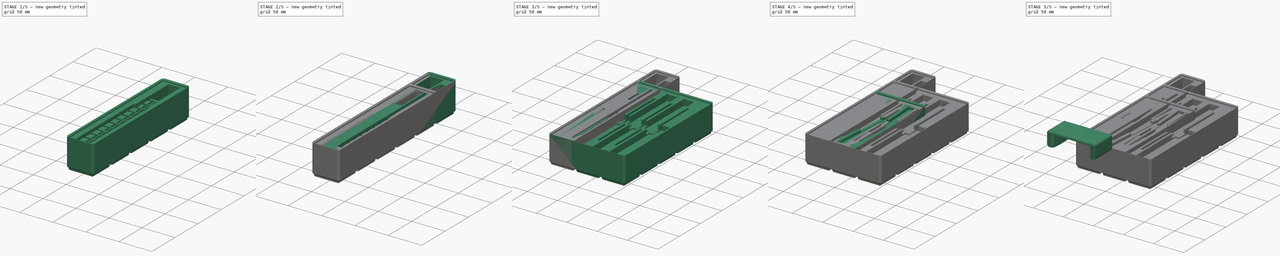
[diagram: build sequence overview — one tinted view per stage of 5, left to right]
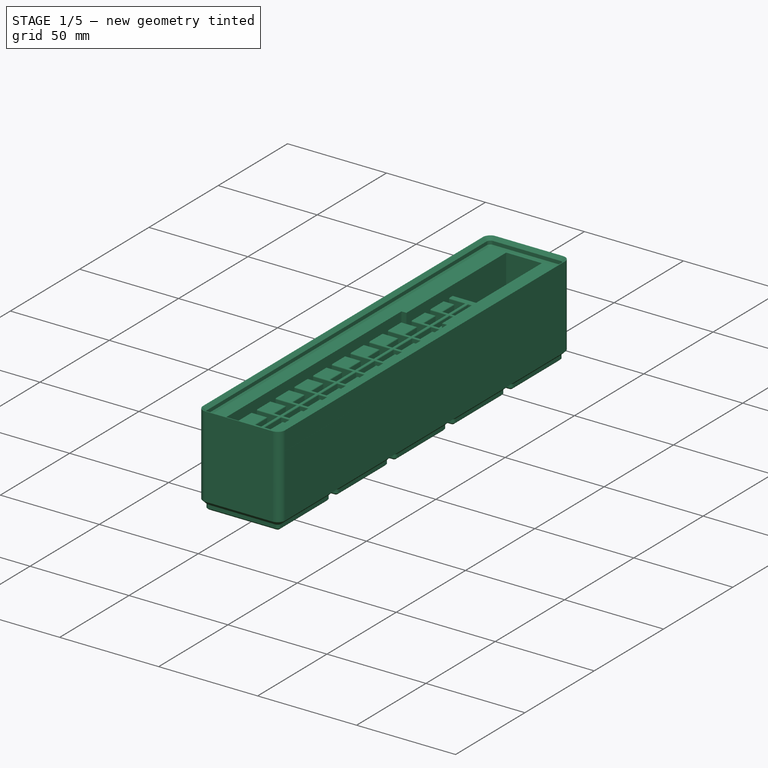
[diagram: stage 1 of 5 — iso view after this stage's code; geometry added in this stage tinted green]
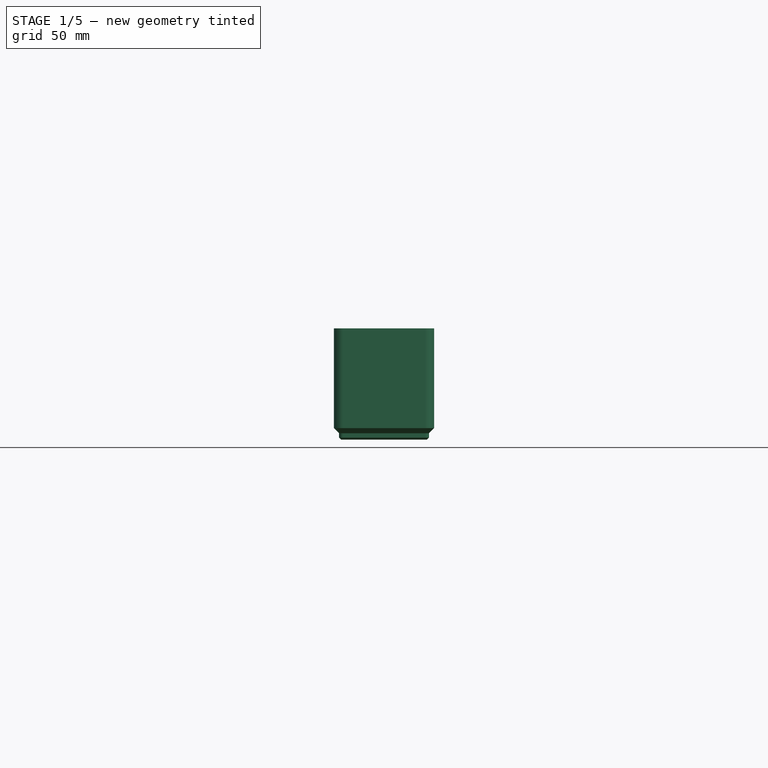
[diagram: stage 1 of 5 — front view after this stage's code; geometry added in this stage tinted green]
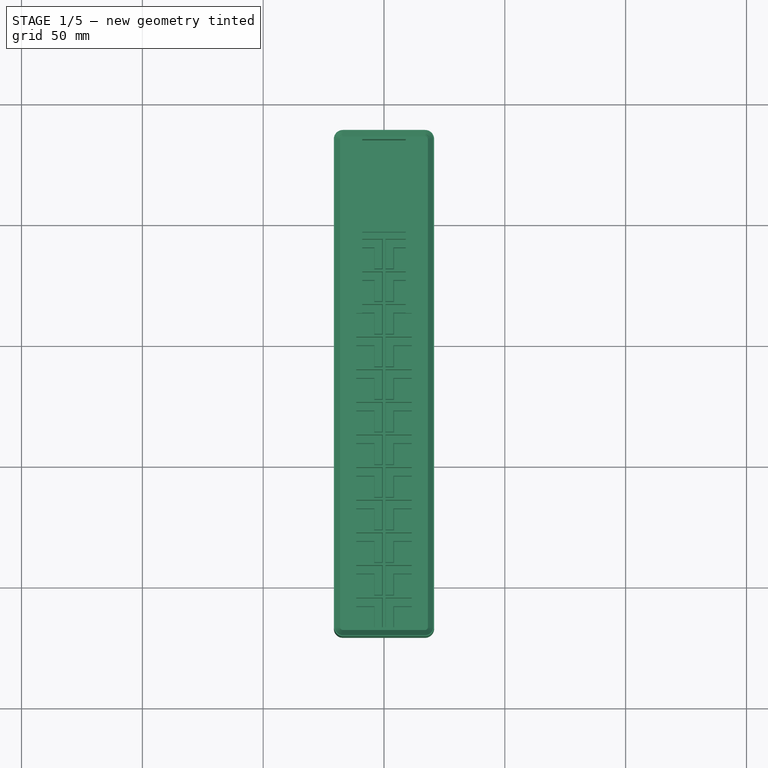
[diagram: stage 1 of 5 — top view after this stage's code; geometry added in this stage tinted green]
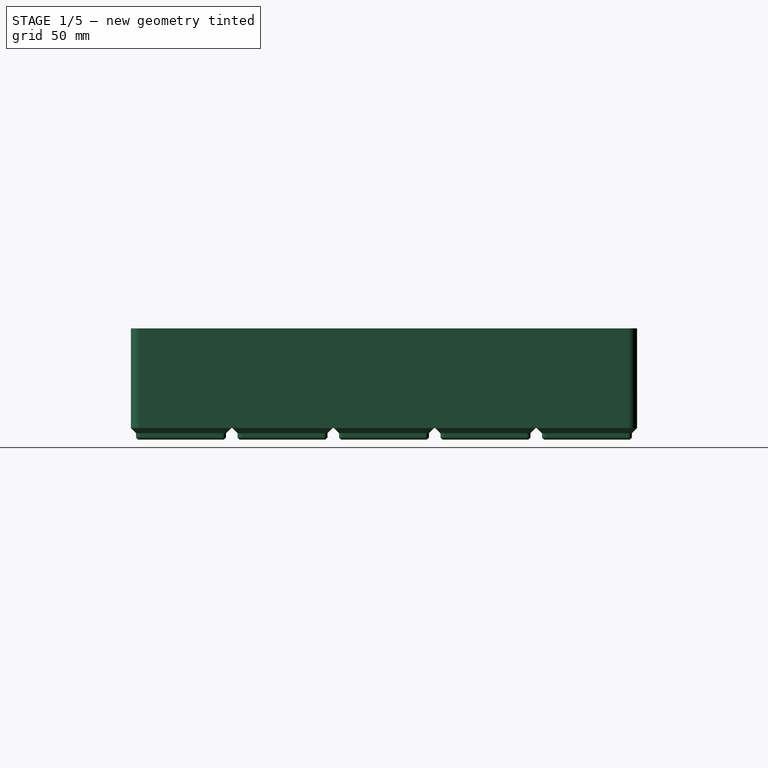
[diagram: stage 1 of 5 — right view after this stage's code; geometry added in this stage tinted green]
FCSTD DOCUMENT  (FreeCAD 1.0R39109 (Git))
Label: Gridfinity
License: All rights reserved
LicenseURL: http://en.wikipedia.org/wiki/All_rights_reserved
objects: Sketcher::SketchObject×15, PartDesign::Pocket×14, PartDesign::Body×9, PartDesign::Fillet×8, PartDesign::FeaturePython×7, PartDesign::LinearPattern×4, PartDesign::Pad×3, PartDesign::MultiTransform×2, Image::ImagePlane×1, Part::FeaturePython×1, PartDesign::FeatureBase×1
note: 143 computed .brp shape members not serialized (recipe doc carries the construction recipe); baked Part::Feature solids carry a one-line shape summary decoded from their .brp

FEATURE [PartDesign::Body] Body003  label="Calipers"
  AllowCompound = false
  Group = -> [BinBlank002,Sketch007,Pocket005,Sketch012,Pad002,Fillet005]
  Origin = -> Origin003
  Placement = pos=(146.5,0,0) rot=(0,0,1;0rad)
  Tip = -> Fillet005
FEATURE [PartDesign::FeaturePython] BinBlank005  # WARN: FeaturePython — macro-defined, semantics opaque (R4)
  BaseProfileBottomChamfer = 0.8
  BaseProfileHeight = 4.75
  BaseProfileTopChamfer = 2.15
  BaseProfileVerticalSection = 1.8
  BinBottomRadius = 0.8
  BinOuterRadius = 3.75
  BinUnit = 41.5
  BinVerticalRadius = 1.6
  CustomHeight = 42
  GridSize = 42
  HeightUnitValue = 7
  HeightUnits = 6
  MagnetHoleDepth = 2.4
  MagnetHoleDiameter = 6.5
  MagnetHoleDistanceFromEdge = 8
  MagnetHoles = true
  NonStandardHeight = false
  ScrewHoleDepth = 6
  ScrewHoleDiameter = 3
  ScrewHoles = true
  SequentialBridgingLayerHeight = 0.2
  StackingLip = true
  StackingLipBottomChamfer = 0.7
  StackingLipTopChamfer = 1.5
  StackingLipTopLedge = 0.4
  StackingLipVerticalSection = 1.8
  Suppressed = false
  Tolerance = 0.25
  TotalHeight = 42
  WallThickness = 1
  version = 0.6.0
  xGridUnits = 1
  xTotalWidth = 41.5
  yGridUnits = 5
  yTotalWidth = 209.5
FEATURE [PartDesign::FeaturePython] BinBlank007  # WARN: FeaturePython — macro-defined, semantics opaque (R4)
  BaseProfileBottomChamfer = 0.8
  BaseProfileHeight = 4.75
  BaseProfileTopChamfer = 2.15
  BaseProfileVerticalSection = 1.8
  BinBottomRadius = 0.8
  BinOuterRadius = 3.75
  BinUnit = 41.5
  BinVerticalRadius = 1.6
  CustomHeight = 42
  GridSize = 42
  HeightUnitValue = 7
  HeightUnits = 6
  MagnetHoleDepth = 2.4
  MagnetHoleDiameter = 6.5
  MagnetHoleDistanceFromEdge = 8
  MagnetHoles = false
  NonStandardHeight = false
  ScrewHoleDepth = 6
  ScrewHoleDiameter = 3
  ScrewHoles = true
  SequentialBridgingLayerHeight = 0.2
  StackingLip = false
  StackingLipBottomChamfer = 0.7
  StackingLipTopChamfer = 1.5
  StackingLipTopLedge = 0.4
  StackingLipVerticalSection = 1.8
  Suppressed = false
  Tolerance = 0.25
  TotalHeight = 42
  WallThickness = 1
  version = 0.6.0
  xGridUnits = 1
  xTotalWidth = 41.5
  yGridUnits = 4
  yTotalWidth = 167.5
FEATURE [PartDesign::Body] Body006  label="Crimper3"
  AllowCompound = false
  Group = -> [BinBlank006,Sketch013,Pocket010,Fillet006]
  Origin = -> Origin006
  Placement = pos=(417.25,0,0) rot=(0,0,1;0rad)
  Tip = -> Fillet006
FEATURE [Sketcher::SketchObject] Sketch014
  ArcFitTolerance = 1e-06
  AttachmentSupport = -> [BinBlank005]
  ExternalGeometry = -> [BinBlank005]
  FullyConstrained = true
  MakeInternals = false
  MapMode = 5
  Placement = pos=(0,0,-7.1e-15) rot=(0,0,1;0rad)
  sketch-geometry (10):
    g0: LineSegment StartX=-9 StartY=185 StartZ=0 EndX=-9 EndY=113 EndZ=0
    g1: LineSegment StartX=9 StartY=113 StartZ=0 EndX=9 EndY=185 EndZ=0
    g2: LineSegment StartX=9 StartY=185 StartZ=0 EndX=-9 EndY=185 EndZ=0
    g3: LineSegment StartX=-11.5 StartY=113 StartZ=0 EndX=-11.5 EndY=-17 EndZ=0
    g4: LineSegment StartX=-11.5 StartY=-17 StartZ=0 EndX=11.5 EndY=-17 EndZ=0
    g5: LineSegment StartX=11.5 StartY=-17 StartZ=0 EndX=11.5 EndY=113 EndZ=0
    g6: LineSegment StartX=11.5 StartY=113 StartZ=0 EndX=9 EndY=113 EndZ=0
    g7: LineSegment StartX=-9 StartY=113 StartZ=0 EndX=-11.5 EndY=113 EndZ=0
    g8: LineSegment [constr] StartX=9 StartY=185 StartZ=0 EndX=9 EndY=186.15 EndZ=0
    g9: LineSegment [constr] StartX=-11.5 StartY=-17 StartZ=0 EndX=-11.5 EndY=-18.15 EndZ=0
  constraints (30):
    c: Coincident(g1,g2)
    c: Coincident(g2,g0)
    c: Vertical(g0)
    c: Vertical(g1)
    c: Horizontal(g2)
    c: Coincident(g3,g4)
    c: Coincident(g4,g5)
    c: Coincident(g5,g6)
    c: Coincident(g7,g3)
    c: Vertical(g3)
    c: Vertical(g5)
    c: Horizontal(g6)
    c: PointOnObject(g0,g7)
    c: Coincident(g6,g1)
    c: PointOnObject(g7,g0)
    c: Horizontal(g7)
    c: Horizontal(g1,g0)
    c: Equal(g7,g6)
    c: Symmetric(g4,g3,g-2)
    c: DistanceY(g5,g5) = 130
    c: DistanceY(g1,g1) = 72
    c: PointOnObject(g8,g-3)
    c: PointOnObject(g9,g-6)
    c: Vertical(g9)
    c: Equal(g9,g8)
    c: Vertical(g8)
    c: Coincident(g3,g9)
    c: Coincident(g8,g1)
    c: DistanceX(g4,g4) = 23
    c: DistanceX(g2,g2) = 18
FEATURE [PartDesign::Pocket] Pocket011
  BaseFeature = -> BinBlank005
  Direction = (0,0,-1)
  Length = 30
  Length2 = 5
  Profile = -> Sketch014
  ReferenceAxis = -> Sketch014 [N_Axis]
  Suppressed = false
  Type = 0
FEATURE [PartDesign::Body] Body008  label="Crimper4"
  AllowCompound = false
  Group = -> [BinBlank005,Sketch014,Pocket011,Fillet007]
  Origin = -> Origin008
  Placement = pos=(538.25,7.5,0) rot=(0,0,1;0rad)
  Tip = -> Fillet007
FEATURE [PartDesign::Pocket] Pocket012
  BaseFeature = -> BinBlank007
  Direction = (0,0,-1)
  Length = 5
  Length2 = 5
  Profile = -> BinBlank007 [Face37]
  Suppressed = false
  Type = 0
FEATURE [Sketcher::SketchObject] Sketch015
  ArcFitTolerance = 1e-06
  AttachmentSupport = -> [Pocket012]
  ExternalGeometry = -> [Pocket012]
  FullyConstrained = false
  MakeInternals = false
  MapMode = 5
  Placement = pos=(0,0,-5) rot=(0,0,1;0rad)
  sketch-geometry (11):
    g0: LineSegment StartX=-19 StartY=-17 StartZ=0 EndX=-19 EndY=-4.75 EndZ=0
    g1: LineSegment StartX=-19 StartY=-4.75 StartZ=0 EndX=-0.75 EndY=-4.75 EndZ=0
    g2: LineSegment StartX=-0.75 StartY=-4.75 StartZ=0 EndX=-0.75 EndY=-17 EndZ=0
    g3: LineSegment StartX=-0.75 StartY=-17 StartZ=0 EndX=-3.875 EndY=-17 EndZ=0
    g4: LineSegment StartX=-3.875 StartY=-17 StartZ=0 EndX=-3.875 EndY=-8.25 EndZ=0
    g5: LineSegment StartX=-3.875 StartY=-8.25 StartZ=0 EndX=-15.875 EndY=-8.25 EndZ=0
    g6: LineSegment StartX=-15.875 StartY=-8.25 StartZ=0 EndX=-15.875 EndY=-17 EndZ=0
    g7: LineSegment StartX=-15.875 StartY=-17 StartZ=0 EndX=-19 EndY=-17 EndZ=0
    g8: GeomPoint X=-9.875 Y=0 Z=0
    g9: GeomPoint [constr] X=-20.75 Y=0 Z=0
    g10: GeomPoint [constr] X=-9.875 Y=-4.75 Z=0
  constraints (29):
    c: Vertical(g0)
    c: Coincident(g0,g1)
    c: Horizontal(g1)
    c: Coincident(g1,g2)
    c: Vertical(g2)
    c: Coincident(g2,g3)
    c: Horizontal(g3)
    c: Coincident(g3,g4)
    c: Vertical(g4)
    c: Coincident(g4,g5)
    c: Coincident(g5,g6)
    c: Vertical(g6)
    c: Coincident(g6,g7)
    c: Coincident(g7,g0)
    c: Horizontal(g7)
    c: Horizontal(g5)
    c: DistanceX(g1,g1) = 18.25
    c: Equal(g7,g3)
    c: DistanceY(g2,g2) = 12.25
    c: Horizontal(g6,g3)
    c: DistanceX(g5,g5) = 12
    c: DistanceY(g5,g0) = 3.5
    c: PointOnObject(g8,g-1)
    c: PointOnObject(g9,g-5)
    c: Symmetric(g1,g1,g10)
    c: Vertical(g10,g8)
    c: DistanceX(g9,g0) = 1.75
    c: DistanceY(g-3,g-6) = 167.5
    c: Horizontal(g0,g-5)
FEATURE [PartDesign::Pocket] Pocket013
  BaseFeature = -> Pocket012
  Direction = (0,0,-1)
  Length = 14
  Length2 = 5
  Profile = -> Sketch015
  ReferenceAxis = -> Sketch015 [N_Axis]
  Suppressed = false
  Type = 0
FEATURE [PartDesign::LinearPattern] LinearPattern002
  Direction = -> Sketch015 [H_Axis]
  Length = 19.75
  Mode = 1
  Occurrences = 2
  Offset = 19.75
  Suppressed = false
  TransformMode = 0
FEATURE [PartDesign::LinearPattern] LinearPattern003
  Direction = -> Sketch015 [V_Axis]
  Length = 148.5
  Mode = 1
  Occurrences = 12
  Offset = 13.5
  Suppressed = false
  TransformMode = 0
FEATURE [PartDesign::MultiTransform] MultiTransform001
  BaseFeature = -> Pocket013
  Originals = -> [Pocket013]
  Suppressed = false
  TransformMode = 0
  Transformations = -> [LinearPattern002,LinearPattern003]
FEATURE [PartDesign::Fillet] Fillet008
  Base = -> MultiTransform001 [Face37]
  BaseFeature = -> MultiTransform001
  Radius = 0.5
  SupportTransform = false
  Suppressed = false
  UseAllEdges = false
FEATURE [PartDesign::Body] Body007  label="XiaoESPC3"
  AllowCompound = false
  Group = -> [BinBlank007,Pocket012,Sketch015,Pocket013,MultiTransform001,LinearPattern002,LinearPattern003,Fillet008]
  Origin = -> Origin007
  Placement = pos=(473.75,29,0) rot=(0,0,1;0rad)
  Tip = -> Fillet008
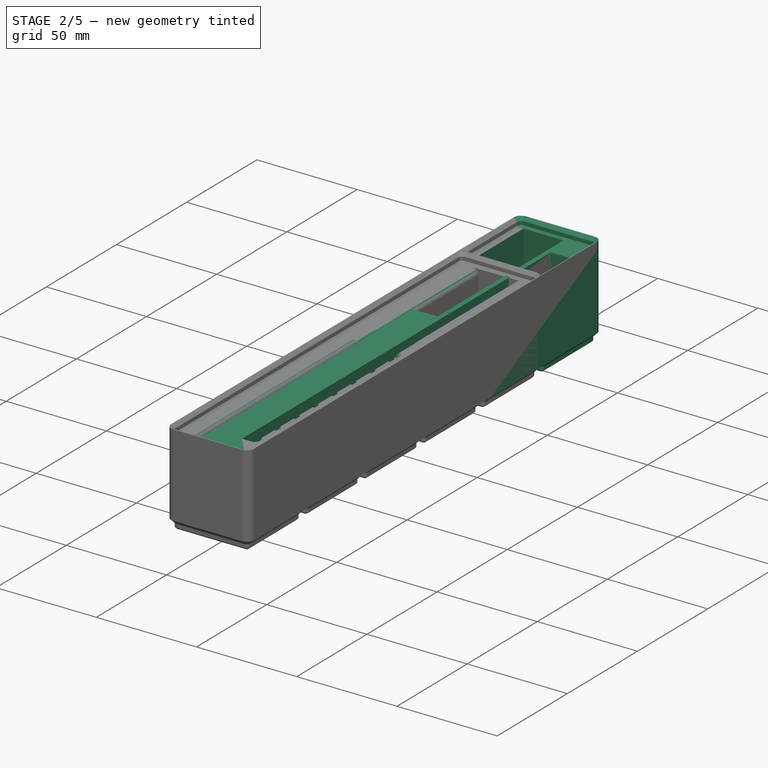
[diagram: stage 2 of 5 — iso view after this stage's code; geometry added in this stage tinted green]
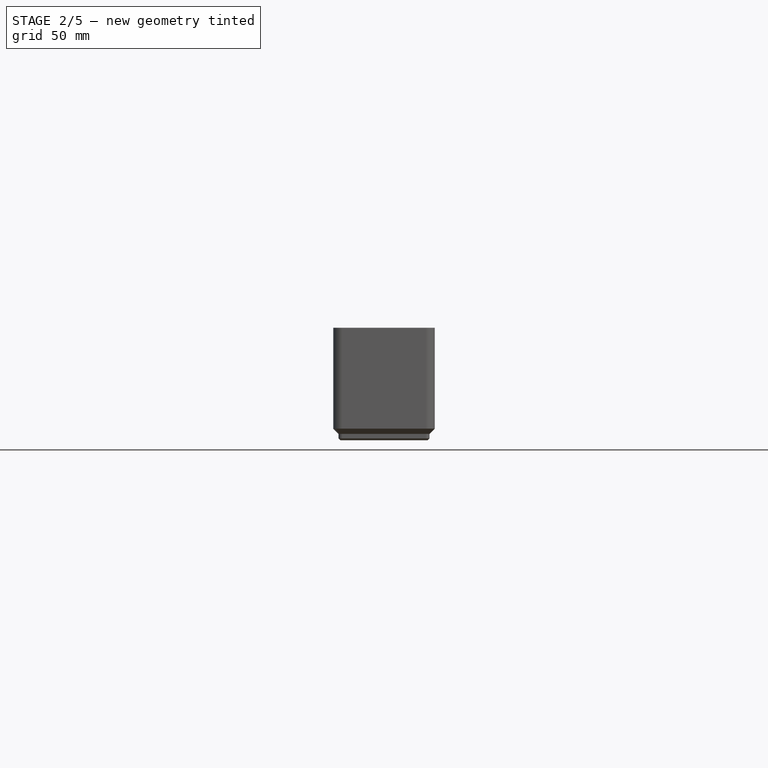
[diagram: stage 2 of 5 — front view after this stage's code; geometry added in this stage tinted green]
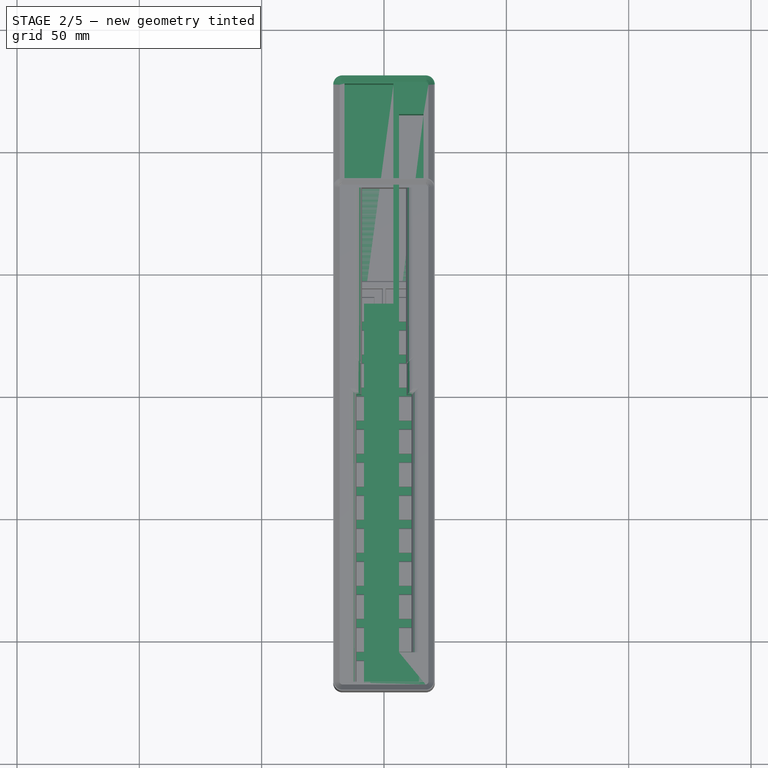
[diagram: stage 2 of 5 — top view after this stage's code; geometry added in this stage tinted green]
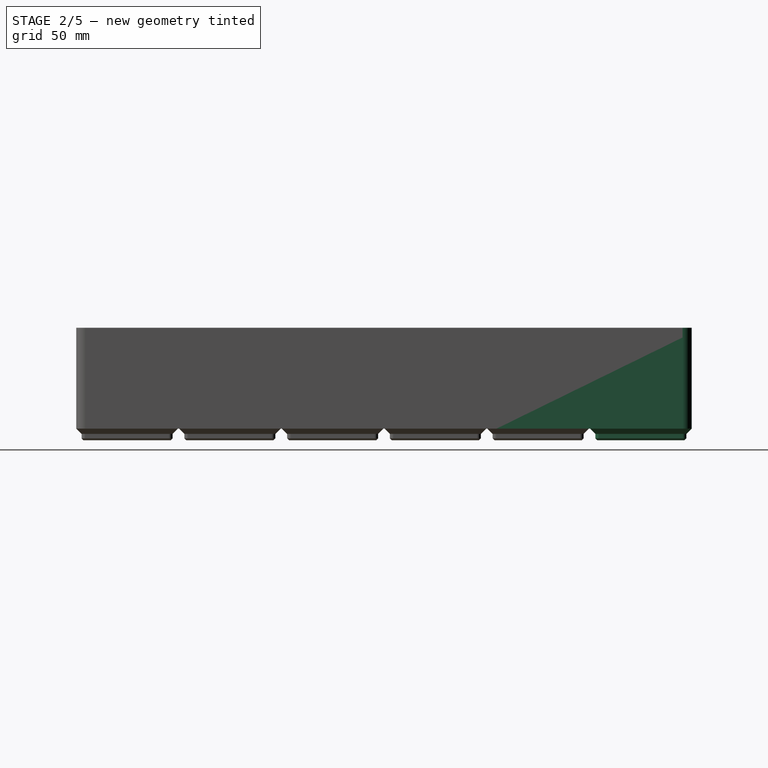
[diagram: stage 2 of 5 — right view after this stage's code; geometry added in this stage tinted green]
FEATURE [PartDesign::Body] Body002  label="Tweezer"
  AllowCompound = false
  Group = -> [BinBlank001,Sketch005,Pocket003,Sketch006,Pocket004,Fillet002]
  Origin = -> Origin002
  Placement = pos=(52.25,0,0) rot=(0,0,1;0rad)
  Tip = -> Fillet002
FEATURE [PartDesign::FeaturePython] BinBlank002  # WARN: FeaturePython — macro-defined, semantics opaque (R4)
  BaseProfileBottomChamfer = 0.8
  BaseProfileHeight = 4.75
  BaseProfileTopChamfer = 2.15
  BaseProfileVerticalSection = 1.8
  BinBottomRadius = 0.8
  BinOuterRadius = 3.75
  BinUnit = 41.5
  BinVerticalRadius = 1.6
  CustomHeight = 42
  GridSize = 42
  HeightUnitValue = 7
  HeightUnits = 6
  MagnetHoleDepth = 2.4
  MagnetHoleDiameter = 6.5
  MagnetHoleDistanceFromEdge = 8
  MagnetHoles = true
  NonStandardHeight = false
  ScrewHoleDepth = 6
  ScrewHoleDiameter = 3
  ScrewHoles = true
  SequentialBridgingLayerHeight = 0.2
  StackingLip = true
  StackingLipBottomChamfer = 0.7
  StackingLipTopChamfer = 1.5
  StackingLipTopLedge = 0.4
  StackingLipVerticalSection = 1.8
  Suppressed = false
  Tolerance = 0.25
  TotalHeight = 42
  WallThickness = 1
  version = 0.6.0
  xGridUnits = 1
  xTotalWidth = 41.5
  yGridUnits = 6
  yTotalWidth = 251.5
FEATURE [Sketcher::SketchObject] Sketch007
  ArcFitTolerance = 1e-06
  AttachmentSupport = -> [BinBlank002]
  ExternalGeometry = -> [BinBlank002]
  FullyConstrained = true
  MakeInternals = false
  MapMode = 5
  Placement = pos=(0,0,-7.1e-15) rot=(0,0,1;0rad)
  sketch-geometry (19):
    g0: LineSegment StartX=-16.15 StartY=227.5 StartZ=0 EndX=-16.15 EndY=-17.5 EndZ=0
    g1: LineSegment StartX=-16.15 StartY=-17.5 StartZ=0 EndX=-8.15 EndY=-17.5 EndZ=0
    g2: LineSegment [constr] StartX=-8.15 StartY=-17.5 StartZ=0 EndX=-8.15 EndY=227.5 EndZ=0
    g3: LineSegment StartX=-8.15 StartY=227.5 StartZ=0 EndX=-16.15 EndY=227.5 EndZ=0
    g4: LineSegment StartX=6.15 StartY=215 StartZ=0 EndX=6.15 EndY=-5 EndZ=0
    g5: LineSegment StartX=6.15 StartY=-5 StartZ=0 EndX=16.15 EndY=-5 EndZ=0
    g6: LineSegment StartX=16.15 StartY=-5 StartZ=0 EndX=16.15 EndY=215 EndZ=0
    g7: LineSegment StartX=16.15 StartY=215 StartZ=0 EndX=6.15 EndY=215 EndZ=0
    g8: LineSegment [constr] StartX=-16.15 StartY=-18.15 StartZ=0 EndX=-16.15 EndY=-17.5 EndZ=0
    g9: LineSegment [constr] StartX=-16.15 StartY=-17.5 StartZ=0 EndX=-18.15 EndY=-17.5 EndZ=0
    g10: LineSegment [constr] StartX=6.15 StartY=-5 StartZ=0 EndX=6.15 EndY=-18.15 EndZ=0
    g11: LineSegment [constr] StartX=16.15 StartY=-5 StartZ=0 EndX=18.15 EndY=-5 EndZ=0
    g12: LineSegment [constr] StartX=16.15 StartY=215 StartZ=0 EndX=16.15 EndY=228.15 EndZ=0
    g13: LineSegment [constr] StartX=-16.15 StartY=227.5 StartZ=0 EndX=-16.15 EndY=228.15 EndZ=0
    g14: LineSegment [constr] StartX=-8.15 StartY=227.5 StartZ=0 EndX=-8.15 EndY=137.5 EndZ=0
    g15: LineSegment StartX=-8.15 StartY=137.5 StartZ=0 EndX=3.85 EndY=137.5 EndZ=0
    g16: LineSegment StartX=3.85 StartY=137.5 StartZ=0 EndX=3.85 EndY=227.5 EndZ=0
    g17: LineSegment StartX=3.85 StartY=227.5 StartZ=0 EndX=-8.15 EndY=227.5 EndZ=0
    g18: LineSegment StartX=-8.15 StartY=137.5 StartZ=0 EndX=-8.15 EndY=-17.5 EndZ=0
  constraints (55):
    c: Coincident(g0,g1)
    c: Coincident(g1,g2)
    c: Coincident(g2,g3)
    c: Coincident(g3,g0)
    c: Vertical(g0)
    c: Vertical(g2)
    c: Horizontal(g1)
    c: Horizontal(g3)
    c: Distance(g0,g2) = 8
    c: Distance(g1,g3) = 245
    c: Coincident(g4,g5)
    c: Coincident(g5,g6)
    c: Coincident(g6,g7)
    c: Coincident(g7,g4)
    c: Vertical(g4)
    c: Vertical(g6)
    c: Horizontal(g5)
    c: Horizontal(g7)
    c: Distance(g4,g6) = 10
    c: Distance(g5,g7) = 220
    c: PointOnObject(g8,g-7)
    c: Vertical(g8)
    c: Coincident(g9,g0)
    c: PointOnObject(g9,g-4)
    c: Horizontal(g9)
    c: Coincident(g0,g8)
    c: Coincident(g10,g4)
    c: PointOnObject(g10,g-7)
    c: Vertical(g10)
    c: Coincident(g11,g5)
    c: PointOnObject(g11,g-3)
    c: Horizontal(g11)
    c: Coincident(g12,g6)
    c: PointOnObject(g12,g-6)
    c: Vertical(g12)
    c: Coincident(g13,g0)
    c: PointOnObject(g13,g-6)
    c: Equal(g13,g8)
    c: Equal(g12,g10)
    c: Equal(g11,g9)
    c: Coincident(g14,g15)
    c: Coincident(g15,g16)
    c: Coincident(g16,g17)
    c: Coincident(g17,g14)
    c: Vertical(g14)
    c: Vertical(g16)
    c: Horizontal(g15)
    c: Horizontal(g17)
    c: Distance(g15,g17) = 90
    c: Coincident(g14,g2)
    c: DistanceX(g0,g16) = 20
    c: DistanceX(g11,g11) = 2
    c: Vertical(g13)
    c: Coincident(g18,g14)
    c: Coincident(g18,g1)
FEATURE [PartDesign::Pocket] Pocket005
  BaseFeature = -> BinBlank002
  Direction = (0,0,-1)
  Length = 30
  Length2 = 5
  Profile = -> Sketch007
  ReferenceAxis = -> Sketch007 [N_Axis]
  Suppressed = false
  Type = 0
FEATURE [PartDesign::Body] Body005  label="608ZZ"
  AllowCompound = false
  Group = -> [BinBlank004,Sketch011,Pocket008,MultiTransform,LinearPattern,LinearPattern001,Pocket009]
  Origin = -> Origin005
  Placement = pos=(350.5,0,0) rot=(0,0,1;0rad)
  Tip = -> Pocket009
FEATURE [Sketcher::SketchObject] Sketch012
  ArcFitTolerance = 1e-06
  AttachmentSupport = -> [Pocket005]
  ExternalGeometry = -> [Pocket005]
  FullyConstrained = true
  MakeInternals = false
  MapMode = 5
  Placement = pos=(0,0,-30) rot=(0,0,1;0rad)
  sketch-geometry (4):
    g0: LineSegment StartX=-16.15 StartY=-17.5 StartZ=0 EndX=16.15 EndY=-17.5 EndZ=0
    g1: LineSegment StartX=16.15 StartY=-17.5 StartZ=0 EndX=16.15 EndY=135.5 EndZ=0
    g2: LineSegment StartX=16.15 StartY=135.5 StartZ=0 EndX=-16.15 EndY=135.5 EndZ=0
    g3: LineSegment StartX=-16.15 StartY=135.5 StartZ=0 EndX=-16.15 EndY=-17.5 EndZ=0
  constraints (11):
    c: Coincident(g0,g1)
    c: Coincident(g1,g2)
    c: Coincident(g2,g3)
    c: Coincident(g3,g0)
    c: Horizontal(g0)
    c: Horizontal(g2)
    c: Vertical(g1)
    c: Vertical(g3)
    c: Coincident(g0,g-3)
    c: PointOnObject(g1,g-5)
    c: DistanceY(g2,g-6) = 2
FEATURE [PartDesign::Pad] Pad002
  BaseFeature = -> Pocket005
  Direction = (0,0,1)
  Length = 20
  Length2 = 10
  Profile = -> Sketch012
  ReferenceAxis = -> Sketch012 [N_Axis]
  Suppressed = false
  Type = 0
FEATURE [PartDesign::FeaturePython] BinBlank006  # WARN: FeaturePython — macro-defined, semantics opaque (R4)
  BaseProfileBottomChamfer = 0.8
  BaseProfileHeight = 4.75
  BaseProfileTopChamfer = 2.15
  BaseProfileVerticalSection = 1.8
  BinBottomRadius = 0.8
  BinOuterRadius = 3.75
  BinUnit = 41.5
  BinVerticalRadius = 1.6
  CustomHeight = 42
  GridSize = 42
  HeightUnitValue = 7
  HeightUnits = 6
  MagnetHoleDepth = 2.4
  MagnetHoleDiameter = 6.5
  MagnetHoleDistanceFromEdge = 8
  MagnetHoles = true
  NonStandardHeight = false
  ScrewHoleDepth = 6
  ScrewHoleDiameter = 3
  ScrewHoles = true
  SequentialBridgingLayerHeight = 0.2
  StackingLip = true
  StackingLipBottomChamfer = 0.7
  StackingLipTopChamfer = 1.5
  StackingLipTopLedge = 0.4
  StackingLipVerticalSection = 1.8
  Suppressed = false
  Tolerance = 0.25
  TotalHeight = 42
  WallThickness = 1
  version = 0.6.0
  xGridUnits = 1
  xTotalWidth = 41.5
  yGridUnits = 5
  yTotalWidth = 209.5
FEATURE [Sketcher::SketchObject] Sketch013
  ArcFitTolerance = 1e-06
  AttachmentSupport = -> [BinBlank006]
  ExternalGeometry = -> [BinBlank006]
  FullyConstrained = true
  MakeInternals = false
  MapMode = 5
  Placement = pos=(0,0,-7.1e-15) rot=(0,0,1;0rad)
  sketch-geometry (12):
    g0: LineSegment StartX=-9.25 StartY=185.25 StartZ=0 EndX=-9.25 EndY=100.25 EndZ=0
    g1: LineSegment StartX=-9.25 StartY=100.25 StartZ=0 EndX=-11.25 EndY=100.25 EndZ=0
    g2: LineSegment StartX=-11.25 StartY=100.25 StartZ=0 EndX=-11.25 EndY=-17.25 EndZ=0
    g3: LineSegment StartX=-11.25 StartY=-17.25 StartZ=0 EndX=11.25 EndY=-17.25 EndZ=0
    g4: LineSegment StartX=11.25 StartY=-17.25 StartZ=0 EndX=11.25 EndY=100.25 EndZ=0
    g5: LineSegment StartX=11.25 StartY=100.25 StartZ=0 EndX=9.25 EndY=100.25 EndZ=0
    g6: LineSegment StartX=9.25 StartY=100.25 StartZ=0 EndX=9.25 EndY=185.25 EndZ=0
    g7: LineSegment StartX=9.25 StartY=185.25 StartZ=0 EndX=-9.25 EndY=185.25 EndZ=0
    g8: LineSegment [constr] StartX=9.25 StartY=185.25 StartZ=0 EndX=9.25 EndY=186.15 EndZ=0
    g9: LineSegment [constr] StartX=11.25 StartY=-18.15 StartZ=0 EndX=11.25 EndY=-17.25 EndZ=0
    g10: LineSegment [constr] StartX=-18.15 StartY=185.25 StartZ=0 EndX=-9.25 EndY=185.25 EndZ=0
    g11: LineSegment [constr] StartX=9.25 StartY=185.25 StartZ=0 EndX=18.15 EndY=185.25 EndZ=0
  constraints (37):
    c: Vertical(g0)
    c: Coincident(g0,g1)
    c: Horizontal(g1)
    c: Coincident(g1,g2)
    c: Vertical(g2)
    c: Coincident(g2,g3)
    c: Horizontal(g3)
    c: Coincident(g3,g4)
    c: Vertical(g4)
    c: Coincident(g4,g5)
    c: Horizontal(g5)
    c: Coincident(g5,g6)
    c: Vertical(g6)
    c: Coincident(g6,g7)
    c: Coincident(g7,g0)
    c: Horizontal(g7)
    c: Equal(g1,g5)
    c: DistanceX(g7,g7) = 18.5
    c: DistanceX(g3,g3) = 22.5
    c: Distance(g6,g6) = 85
    c: Horizontal(g5,g0)
    c: DistanceY(g4,g4) = 117.5
    c: PointOnObject(g8,g7)
    c: PointOnObject(g8,g-3)
    c: Vertical(g8)
    c: PointOnObject(g9,g-4)
    c: Vertical(g9)
    c: Equal(g9,g8)
    c: PointOnObject(g10,g-6)
    c: Horizontal(g10)
    c: PointOnObject(g11,g6)
    c: PointOnObject(g11,g-5)
    c: Horizontal(g11)
    c: Equal(g11,g10)
    c: Coincident(g10,g0)
    c: Coincident(g9,g3)
    c: Coincident(g8,g11)
FEATURE [PartDesign::Pocket] Pocket010
  BaseFeature = -> BinBlank006
  Direction = (0,0,-1)
  Length = 30
  Length2 = 5
  Profile = -> Sketch013
  ReferenceAxis = -> Sketch013 [N_Axis]
  Suppressed = false
  Type = 0
FEATURE [PartDesign::Fillet] Fillet006
  Base = -> Pocket010 [Edge324,Edge326,Edge325,Edge329,Edge330,Edge328]
  BaseFeature = -> Pocket010
  Radius = 3
  SupportTransform = false
  Suppressed = false
  UseAllEdges = false
FEATURE [PartDesign::Fillet] Fillet007
  Base = -> Pocket011 [Edge326,Edge325,Edge324,Edge328,Edge329,Edge330]
  BaseFeature = -> Pocket011
  Radius = 3
  SupportTransform = false
  Suppressed = false
  UseAllEdges = false
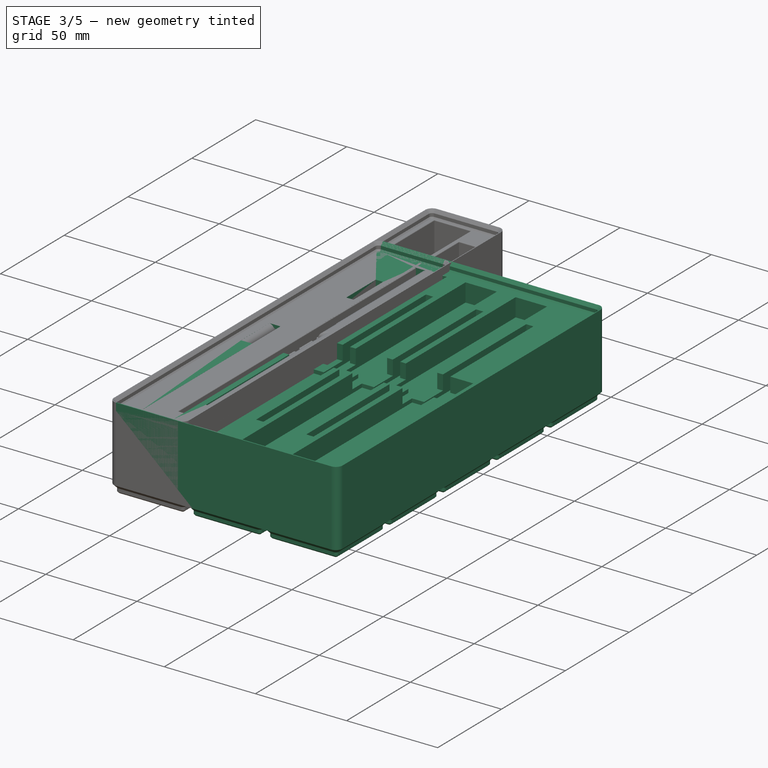
[diagram: stage 3 of 5 — iso view after this stage's code; geometry added in this stage tinted green]
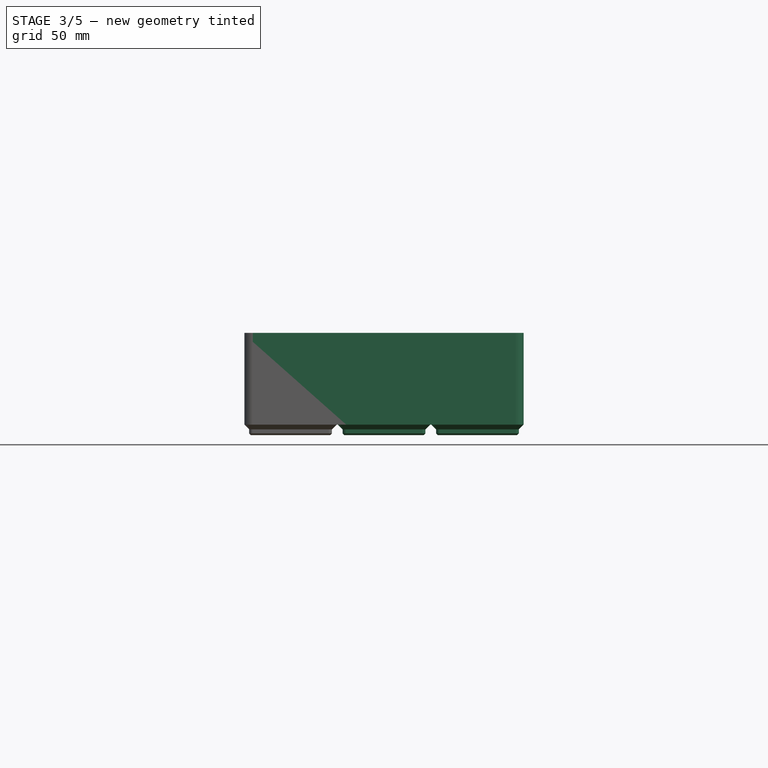
[diagram: stage 3 of 5 — front view after this stage's code; geometry added in this stage tinted green]
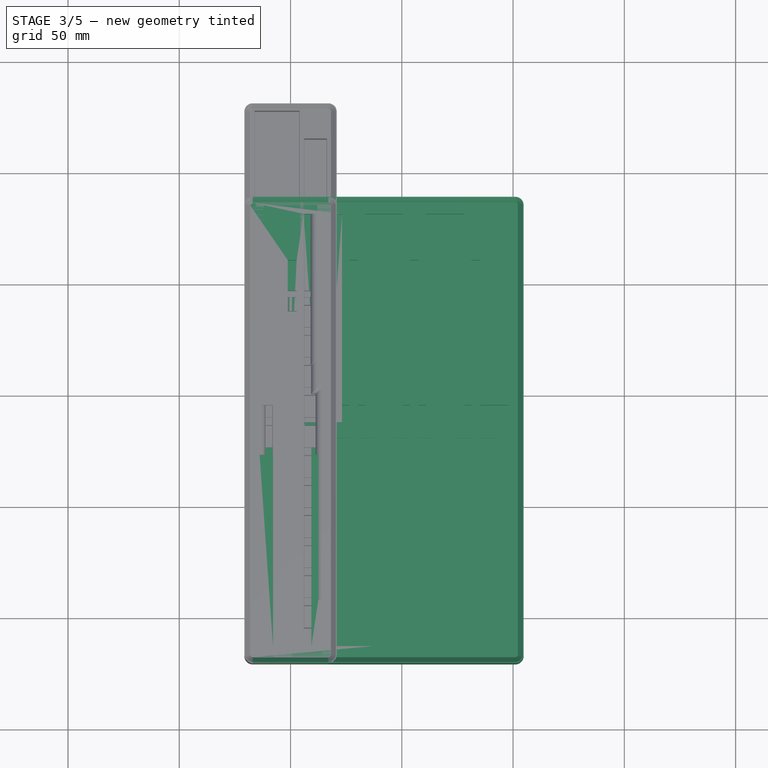
[diagram: stage 3 of 5 — top view after this stage's code; geometry added in this stage tinted green]
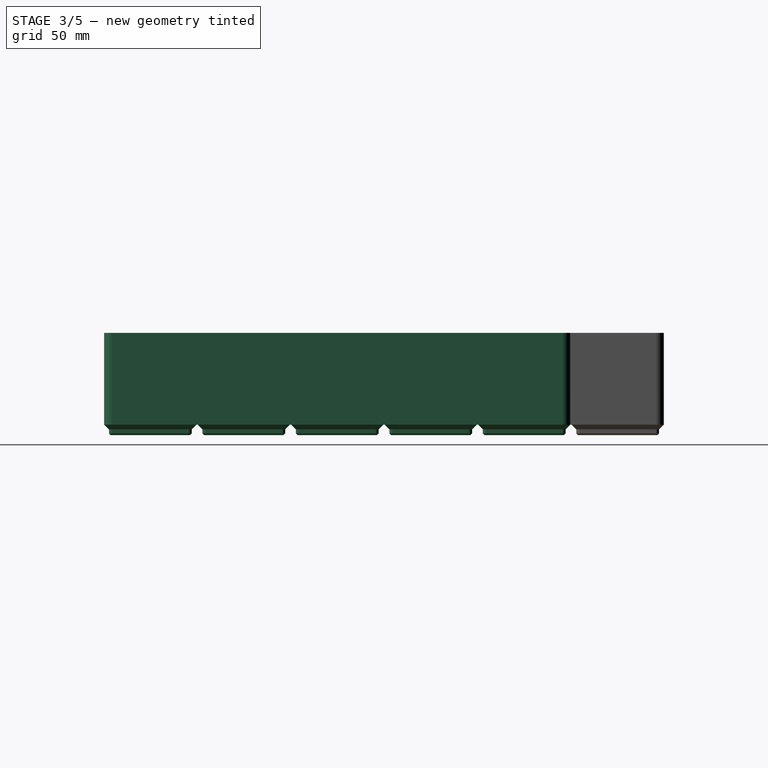
[diagram: stage 3 of 5 — right view after this stage's code; geometry added in this stage tinted green]
FEATURE [PartDesign::FeaturePython] BinBlank003  # WARN: FeaturePython — macro-defined, semantics opaque (R4)
  BaseProfileBottomChamfer = 0.8
  BaseProfileHeight = 4.75
  BaseProfileTopChamfer = 2.15
  BaseProfileVerticalSection = 1.8
  BinBottomRadius = 0.8
  BinOuterRadius = 3.75
  BinUnit = 41.5
  BinVerticalRadius = 1.6
  CustomHeight = 42
  GridSize = 42
  HeightUnitValue = 7
  HeightUnits = 6
  MagnetHoleDepth = 2.4
  MagnetHoleDiameter = 6.5
  MagnetHoleDistanceFromEdge = 8
  MagnetHoles = true
  NonStandardHeight = false
  ScrewHoleDepth = 6
  ScrewHoleDiameter = 3
  ScrewHoles = true
  SequentialBridgingLayerHeight = 0.2
  StackingLip = true
  StackingLipBottomChamfer = 0.7
  StackingLipTopChamfer = 1.5
  StackingLipTopLedge = 0.4
  StackingLipVerticalSection = 1.8
  Suppressed = false
  Tolerance = 0.25
  TotalHeight = 42
  WallThickness = 1
  version = 0.6.0
  xGridUnits = 3
  xTotalWidth = 125.5
  yGridUnits = 5
  yTotalWidth = 209.5
FEATURE [Sketcher::SketchObject] Sketch009
  ArcFitTolerance = 1e-06
  AttachmentSupport = -> [BinBlank003]
  ExternalGeometry = -> [BinBlank003]
  FullyConstrained = true
  MakeInternals = false
  MapMode = 5
  Placement = pos=(0,0,-7.1e-15) rot=(0,0,1;0rad)
  sketch-geometry (69):
    g0: LineSegment StartX=-7.89 StartY=80.35 StartZ=0 EndX=-7.89 EndY=-13.15 EndZ=0
    g1: LineSegment StartX=-7.89 StartY=-13.15 StartZ=0 EndX=9.36 EndY=-13.15 EndZ=0
    g2: LineSegment StartX=9.36 StartY=-13.15 StartZ=0 EndX=9.36 EndY=80.35 EndZ=0
    g3: LineSegment StartX=9.36 StartY=80.35 StartZ=0 EndX=2.735 EndY=80.35 EndZ=0
    g4: LineSegment StartX=2.735 StartY=80.35 StartZ=0 EndX=2.735 EndY=160.35 EndZ=0
    g5: LineSegment StartX=2.735 StartY=160.35 StartZ=0 EndX=-1.265 EndY=160.35 EndZ=0
    g6: LineSegment StartX=-1.265 StartY=160.35 StartZ=0 EndX=-1.265 EndY=80.35 EndZ=0
    g7: LineSegment StartX=-1.265 StartY=80.35 StartZ=0 EndX=-7.89 EndY=80.35 EndZ=0
    g8: LineSegment StartX=67.51 StartY=87.65 StartZ=0 EndX=67.51 EndY=7.65 EndZ=0
    g9: LineSegment StartX=67.51 StartY=7.65 StartZ=0 EndX=71.51 EndY=7.65 EndZ=0
    g10: LineSegment StartX=71.51 StartY=7.65 StartZ=0 EndX=71.51 EndY=87.65 EndZ=0
    g11: LineSegment StartX=71.51 StartY=87.65 StartZ=0 EndX=78.135 EndY=87.65 EndZ=0
    g12: LineSegment StartX=78.135 StartY=87.65 StartZ=0 EndX=78.135 EndY=181.15 EndZ=0
    g13: LineSegment StartX=78.135 StartY=181.15 StartZ=0 EndX=60.885 EndY=181.15 EndZ=0
    g14: LineSegment StartX=60.885 StartY=181.15 StartZ=0 EndX=60.885 EndY=87.65 EndZ=0
    g15: LineSegment StartX=60.885 StartY=87.65 StartZ=0 EndX=67.51 EndY=87.65 EndZ=0
    g16: LineSegment StartX=40 StartY=87.65 StartZ=0 EndX=40 EndY=7.65 EndZ=0
    g17: LineSegment StartX=40 StartY=7.65 StartZ=0 EndX=44 EndY=7.65 EndZ=0
    g18: LineSegment StartX=44 StartY=7.65 StartZ=0 EndX=44 EndY=87.65 EndZ=0
    g19: LineSegment StartX=44 StartY=87.65 StartZ=0 EndX=50.625 EndY=87.65 EndZ=0
    g20: LineSegment StartX=50.625 StartY=87.65 StartZ=0 EndX=50.625 EndY=181.15 EndZ=0
    g21: LineSegment StartX=50.625 StartY=181.15 StartZ=0 EndX=33.375 EndY=181.15 EndZ=0
    g22: LineSegment StartX=33.375 StartY=181.15 StartZ=0 EndX=33.375 EndY=87.65 EndZ=0
    g23: LineSegment StartX=33.375 StartY=87.65 StartZ=0 EndX=40 EndY=87.65 EndZ=0
    g24: LineSegment StartX=12.49 StartY=87.65 StartZ=0 EndX=12.49 EndY=7.65 EndZ=0
    g25: LineSegment StartX=12.49 StartY=7.65 StartZ=0 EndX=16.49 EndY=7.65 EndZ=0
    g26: LineSegment StartX=16.49 StartY=7.65 StartZ=0 EndX=16.49 EndY=87.65 EndZ=0
    g27: LineSegment StartX=16.49 StartY=87.65 StartZ=0 EndX=5.865 EndY=87.65 EndZ=0
    g28: LineSegment StartX=5.865 StartY=87.65 StartZ=0 EndX=5.865 EndY=181.15 EndZ=0
    g29: LineSegment StartX=5.865 StartY=181.15 StartZ=0 EndX=23.115 EndY=181.15 EndZ=0
    g30: LineSegment StartX=23.115 StartY=181.15 StartZ=0 EndX=23.115 EndY=87.65 EndZ=0
    g31: LineSegment StartX=23.115 StartY=87.65 StartZ=0 EndX=12.49 EndY=87.65 EndZ=0
    g32: LineSegment StartX=19.62 StartY=80.35 StartZ=0 EndX=19.62 EndY=-13.15 EndZ=0
    g33: LineSegment StartX=19.62 StartY=-13.15 StartZ=0 EndX=36.87 EndY=-13.15 EndZ=0
    g34: LineSegment StartX=36.87 StartY=-13.15 StartZ=0 EndX=36.87 EndY=80.35 EndZ=0
    g35: LineSegment StartX=36.87 StartY=80.35 StartZ=0 EndX=30.245 EndY=80.35 EndZ=0
    g36: LineSegment StartX=30.245 StartY=80.35 StartZ=0 EndX=30.245 EndY=160.35 EndZ=0
    g37: LineSegment StartX=30.245 StartY=160.35 StartZ=0 EndX=26.245 EndY=160.35 EndZ=0
    g38: LineSegment StartX=26.245 StartY=160.35 StartZ=0 EndX=26.245 EndY=80.35 EndZ=0
    g39: LineSegment StartX=26.245 StartY=80.35 StartZ=0 EndX=19.62 EndY=80.35 EndZ=0
    g40: LineSegment StartX=47.13 StartY=80.35 StartZ=0 EndX=47.13 EndY=-13.15 EndZ=0
    g41: LineSegment StartX=47.13 StartY=-13.15 StartZ=0 EndX=64.38 EndY=-13.15 EndZ=0
    g42: LineSegment StartX=64.38 StartY=-13.15 StartZ=0 EndX=64.38 EndY=80.35 EndZ=0
    g43: LineSegment StartX=64.38 StartY=80.35 StartZ=0 EndX=57.755 EndY=80.35 EndZ=0
    g44: LineSegment StartX=57.755 StartY=80.35 StartZ=0 EndX=57.755 EndY=160.35 EndZ=0
    g45: LineSegment StartX=57.755 StartY=160.35 StartZ=0 EndX=53.755 EndY=160.35 EndZ=0
    g46: LineSegment StartX=53.755 StartY=160.35 StartZ=0 EndX=53.755 EndY=80.35 EndZ=0
    g47: LineSegment StartX=53.755 StartY=80.35 StartZ=0 EndX=47.13 EndY=80.35 EndZ=0
    g48: LineSegment StartX=74.64 StartY=80.35 StartZ=0 EndX=74.64 EndY=-13.15 EndZ=0
    g49: LineSegment StartX=74.64 StartY=-13.15 StartZ=0 EndX=91.89 EndY=-13.15 EndZ=0
    g50: LineSegment StartX=91.89 StartY=-13.15 StartZ=0 EndX=91.89 EndY=80.35 EndZ=0
    g51: LineSegment StartX=91.89 StartY=80.35 StartZ=0 EndX=85.265 EndY=80.35 EndZ=0
    g52: LineSegment StartX=85.265 StartY=80.35 StartZ=0 EndX=85.265 EndY=160.35 EndZ=0
    g53: LineSegment StartX=85.265 StartY=160.35 StartZ=0 EndX=81.265 EndY=160.35 EndZ=0
    g54: LineSegment StartX=81.265 StartY=160.35 StartZ=0 EndX=81.265 EndY=80.35 EndZ=0
    g55: LineSegment StartX=81.265 StartY=80.35 StartZ=0 EndX=74.64 EndY=80.35 EndZ=0
    g56: LineSegment [constr] StartX=-18.15 StartY=-13.15 StartZ=0 EndX=-7.89 EndY=-13.15 EndZ=0
    g57: LineSegment [constr] StartX=9.36 StartY=-13.15 StartZ=0 EndX=19.62 EndY=-13.15 EndZ=0
    g58: LineSegment [constr] StartX=36.87 StartY=-13.15 StartZ=0 EndX=47.13 EndY=-13.15 EndZ=0
    g59: LineSegment [constr] StartX=64.38 StartY=-13.15 StartZ=0 EndX=74.64 EndY=-13.15 EndZ=0
    g60: LineSegment [constr] StartX=91.89 StartY=-13.15 StartZ=0 EndX=102.15 EndY=-13.15 EndZ=0
    g61: LineSegment [constr] StartX=23.115 StartY=181.15 StartZ=0 EndX=33.375 EndY=181.15 EndZ=0
    g62: LineSegment [constr] StartX=50.625 StartY=181.15 StartZ=0 EndX=60.885 EndY=181.15 EndZ=0
    g63: GeomPoint [constr] X=28.245 Y=181.15 Z=0
    g64: GeomPoint [constr] X=55.755 Y=181.15 Z=0
    g65: GeomPoint [constr] X=28.245 Y=160.35 Z=0
    g66: GeomPoint [constr] X=55.755 Y=160.35 Z=0
    g67: LineSegment [constr] StartX=5.865 StartY=181.15 StartZ=0 EndX=5.865 EndY=186.15 EndZ=0
    g68: LineSegment [constr] StartX=9.36 StartY=-13.15 StartZ=0 EndX=9.36 EndY=-18.15 EndZ=0
  constraints (195):
    c: Vertical(g0)
    c: Coincident(g0,g1)
    c: Horizontal(g1)
    c: Coincident(g1,g2)
    c: Vertical(g2)
    c: Coincident(g2,g3)
    c: Horizontal(g3)
    c: Coincident(g3,g4)
    c: Vertical(g4)
    c: Coincident(g4,g5)
    c: Coincident(g5,g6)
    c: Vertical(g6)
    c: Coincident(g6,g7)
    c: Coincident(g7,g0)
    c: Horizontal(g7)
    c: Horizontal(g6,g3)
    c: Distance(g1,g1) = 17.25
    c: DistanceY(g0,g0) = 93.5
    c: DistanceY(g6,g6) = 80
    c: Equal(g7,g3)
    c: Distance(g5,g5) = 4
    c: Vertical(g8)
    c: Vertical(g16)
    c: Vertical(g24)
    c: Coincident(g8,g9)
    c: Coincident(g16,g17)
    c: Coincident(g24,g25)
    c: Horizontal(g17)
    c: Horizontal(g25)
    c: Coincident(g9,g10)
    c: Coincident(g17,g18)
    c: Coincident(g25,g26)
    c: Vertical(g10)
    c: Vertical(g18)
    c: Vertical(g26)
    c: Coincident(g10,g11)
    c: Coincident(g18,g19)
    c: Coincident(g26,g27)
    c: Horizontal(g11)
    c: Horizontal(g19)
    c: Horizontal(g27)
    c: Coincident(g11,g12)
    c: Coincident(g19,g20)
    c: Coincident(g27,g28)
    c: Vertical(g12)
    c: Vertical(g20)
    c: Vertical(g28)
    c: Coincident(g12,g13)
    c: Coincident(g20,g21)
    c: Coincident(g28,g29)
    c: Coincident(g13,g14)
    c: Coincident(g21,g22)
    c: Coincident(g29,g30)
    c: Vertical(g14)
    c: Vertical(g22)
    c: Vertical(g30)
    c: Coincident(g14,g15)
    c: Coincident(g22,g23)
    c: Coincident(g30,g31)
    c: Coincident(g15,g8)
    c: Coincident(g23,g16)
    c: Coincident(g31,g24)
    c: Horizontal(g15)
    c: Horizontal(g23)
    c: Horizontal(g31)
    c: Horizontal(g13)
    c: Horizontal(g21)
    c: Horizontal(g29)
    c: Horizontal(g14,g11)
    c: Horizontal(g22,g19)
    c: Horizontal(g30,g27)
    c: Equal(g15,g11)
    c: Equal(g23,g19)
    c: Equal(g31,g27)
    c: Vertical(g32)
    c: Vertical(g40)
    c: Vertical(g48)
    c: Coincident(g32,g33)
    c: Coincident(g40,g41)
    c: Coincident(g48,g49)
    c: Horizontal(g33)
    c: Horizontal(g41)
    c: Horizontal(g49)
    c: Coincident(g33,g34)
    c: Coincident(g41,g42)
    c: Coincident(g49,g50)
    c: Vertical(g34)
    c: Vertical(g42)
    c: Vertical(g50)
    c: Coincident(g34,g35)
    c: Coincident(g42,g43)
    c: Coincident(g50,g51)
    c: Horizontal(g35)
    c: Horizontal(g43)
    c: Horizontal(g51)
    c: Coincident(g35,g36)
    c: Coincident(g43,g44)
    c: Coincident(g51,g52)
    c: Vertical(g36)
    c: Vertical(g44)
    c: Vertical(g52)
    c: Coincident(g36,g37)
    c: Coincident(g44,g45)
    c: Coincident(g52,g53)
    c: Coincident(g37,g38)
    c: Coincident(g45,g46)
    c: Coincident(g53,g54)
    c: Vertical(g38)
    c: Vertical(g46)
    c: Vertical(g54)
    c: Coincident(g38,g39)
    c: Coincident(g46,g47)
    c: Coincident(g54,g55)
    c: Coincident(g39,g32)
    c: Coincident(g47,g40)
    c: Coincident(g55,g48)
    c: Horizontal(g39)
    c: Horizontal(g47)
    c: Horizontal(g55)
    c: Horizontal(g37)
    c: Horizontal(g45)
    c: Horizontal(g53)
    c: Horizontal(g38,g35)
    c: Horizontal(g46,g43)
    c: Horizontal(g54,g51)
    c: Distance(g33,g33) = 17.25
    c: Distance(g41,g41) = 17.25
    c: Distance(g49,g49) = 17.25
    c: DistanceY(g32,g32) = 93.5
    c: DistanceY(g40,g40) = 93.5
    c: DistanceY(g48,g48) = 93.5
    c: DistanceY(g38,g38) = 80
    c: DistanceY(g46,g46) = 80
    c: DistanceY(g54,g54) = 80
    c: Equal(g39,g35)
    c: Equal(g47,g43)
    c: Equal(g55,g51)
    c: Distance(g37,g37) = 4
    c: Distance(g45,g45) = 4
    c: Distance(g53,g53) = 4
    c: Equal(g25,g53)
    c: Equal(g9,g25)
    c: Equal(g24,g54)
    c: Equal(g30,g50)
    c: Equal(g29,g49)
    c: Equal(g30,g22)
    c: Equal(g22,g14)
    c: Equal(g21,g13)
    c: Equal(g13,g29)
    c: Equal(g9,g17)
    c: Equal(g26,g16)
    c: Equal(g16,g8)
    c: Equal(g10,g8)
    c: Horizontal(g1,g32)
    c: Horizontal(g32,g40)
    c: Horizontal(g40,g48)
    c: Horizontal(g5)
    c: Coincident(g56,g0)
    c: Coincident(g57,g1)
    c: Coincident(g57,g32)
    c: Coincident(g58,g33)
    c: Coincident(g58,g40)
    c: Coincident(g59,g41)
    c: Coincident(g59,g48)
    c: Coincident(g60,g49)
    c: Equal(g60,g59)
    c: Equal(g59,g58)
    c: Equal(g58,g57)
    c: Equal(g57,g56)
    c: Horizontal(g56)
    c: PointOnObject(g56,g-3)
    c: PointOnObject(g60,g-5)
    c: Horizontal(g60)
    c: Coincident(g61,g29)
    c: Coincident(g61,g21)
    c: Horizontal(g61)
    c: Coincident(g62,g20)
    c: Coincident(g62,g13)
    c: Horizontal(g62)
    c: Equal(g62,g61)
    c: Symmetric(g61,g61,g63)
    c: Symmetric(g62,g62,g64)
    c: Symmetric(g45,g45,g66)
    c: Symmetric(g37,g36,g65)
    c: DistanceX(g56,g56) = 10.26
    c: DistanceX(g61,g61) = 10.26
    c: Vertical(g65,g63)
    c: Coincident(g67,g28)
    c: PointOnObject(g67,g-6)
    c: Vertical(g67)
    c: Coincident(g68,g1)
    c: PointOnObject(g68,g-4)
    c: Vertical(g68)
    c: Equal(g68,g67)
    c: DistanceY(g67,g67) = 5
FEATURE [PartDesign::Pocket] Pocket006
  BaseFeature = -> BinBlank003
  Direction = (0,0,-1)
  Length = 10
  Length2 = 5
  Profile = -> Sketch009
  ReferenceAxis = -> Sketch009 [N_Axis]
  Suppressed = false
  Type = 0
FEATURE [Sketcher::SketchObject] Sketch010
  ArcFitTolerance = 1e-06
  AttachmentSupport = -> [Pocket006]
  ExternalGeometry = -> [Pocket006]
  FullyConstrained = true
  MakeInternals = false
  MapMode = 5
  Placement = pos=(0,0,-7.1e-15) rot=(0,0,1;0rad)
  sketch-geometry (4):
    g0: LineSegment StartX=-13.89 StartY=95.15 StartZ=0 EndX=-13.89 EndY=72.85 EndZ=0
    g1: LineSegment StartX=-13.89 StartY=72.85 StartZ=0 EndX=97.89 EndY=72.85 EndZ=0
    g2: LineSegment StartX=97.89 StartY=72.85 StartZ=0 EndX=97.89 EndY=95.15 EndZ=0
    g3: LineSegment StartX=97.89 StartY=95.15 StartZ=0 EndX=-13.89 EndY=95.15 EndZ=0
  constraints (12):
    c: Coincident(g0,g1)
    c: Coincident(g1,g2)
    c: Coincident(g2,g3)
    c: Coincident(g3,g0)
    c: Vertical(g0)
    c: Vertical(g2)
    c: Horizontal(g1)
    c: Horizontal(g3)
    c: DistanceY(g0,g-3) = 7.5
    c: DistanceY(g-4,g2) = 7.5
    c: DistanceX(g-5,g1) = 6
    c: DistanceX(g0,g-3) = 6
FEATURE [PartDesign::Pocket] Pocket007
  BaseFeature = -> Pocket006
  Direction = (0,0,-1)
  Length = 8
  Length2 = 5
  Profile = -> Sketch010
  ReferenceAxis = -> Sketch010 [N_Axis]
  Suppressed = false
  Type = 0
FEATURE [PartDesign::Body] Body004  label="ScrewDrivers"
  AllowCompound = false
  Group = -> [BinBlank003,Sketch009,Pocket006,Sketch010,Pocket007,Fillet004]
  Origin = -> Origin004
  Placement = pos=(198.75,0,0) rot=(0,0,1;0rad)
  Tip = -> Fillet004
FEATURE [PartDesign::FeaturePython] BinBlank004  # WARN: FeaturePython — macro-defined, semantics opaque (R4)
  BaseProfileBottomChamfer = 0.8
  BaseProfileHeight = 4.75
  BaseProfileTopChamfer = 2.15
  BaseProfileVerticalSection = 1.8
  BinBottomRadius = 0.8
  BinOuterRadius = 3.75
  BinUnit = 41.5
  BinVerticalRadius = 1.6
  CustomHeight = 42
  GridSize = 42
  HeightUnitValue = 7
  HeightUnits = 6
  MagnetHoleDepth = 2.4
  MagnetHoleDiameter = 6.5
  MagnetHoleDistanceFromEdge = 8
  MagnetHoles = false
  NonStandardHeight = false
  ScrewHoleDepth = 6
  ScrewHoleDiameter = 3
  ScrewHoles = true
  SequentialBridgingLayerHeight = 0.2
  StackingLip = false
  StackingLipBottomChamfer = 0.7
  StackingLipTopChamfer = 1.5
  StackingLipTopLedge = 0.4
  StackingLipVerticalSection = 1.8
  Suppressed = false
  Tolerance = 0.25
  TotalHeight = 42
  WallThickness = 1
  version = 0.6.0
  xGridUnits = 1
  xTotalWidth = 41.5
  yGridUnits = 4
  yTotalWidth = 167.5
FEATURE [Sketcher::SketchObject] Sketch011
  ArcFitTolerance = 1e-06
  AttachmentSupport = -> [BinBlank004]
  ExternalGeometry = -> [BinBlank004]
  FullyConstrained = true
  MakeInternals = false
  MapMode = 5
  sketch-geometry (28):
    g0: LineSegment [constr] StartX=-16 StartY=-19.75 StartZ=0 EndX=16 EndY=-19.75 EndZ=0
    g1: LineSegment [constr] StartX=19.75 StartY=-16 StartZ=0 EndX=19.75 EndY=142 EndZ=0
    g2: LineSegment [constr] StartX=16 StartY=145.75 StartZ=0 EndX=-16 EndY=145.75 EndZ=0
    g3: LineSegment [constr] StartX=-19.75 StartY=142 StartZ=0 EndX=-19.75 EndY=-16 EndZ=0
    g4: GeomPoint [constr] X=-19.75 Y=-19.75 Z=0
    g5: GeomPoint [constr] X=19.75 Y=-19.75 Z=0
    g6: GeomPoint [constr] X=19.75 Y=145.75 Z=0
    g7: GeomPoint [constr] X=-19.75 Y=145.75 Z=0
    g8: LineSegment StartX=-19.5 StartY=3.5 StartZ=0 EndX=-19.5 EndY=-18.75 EndZ=0
    g9: LineSegment StartX=-19.5 StartY=-18.75 StartZ=0 EndX=-12.25 EndY=-18.75 EndZ=0
    g10: LineSegment StartX=-12.25 StartY=-18.75 StartZ=0 EndX=-12.25 EndY=3.5 EndZ=0
    g11: LineSegment StartX=-12.25 StartY=3.5 StartZ=0 EndX=-19.5 EndY=3.5 EndZ=0
    g12: LineSegment [constr] StartX=-19.75 StartY=142 StartZ=0 EndX=-16 EndY=142 EndZ=0
    g13: LineSegment [constr] StartX=-16 StartY=142 StartZ=0 EndX=-16 EndY=145.75 EndZ=0
    g14: LineSegment [constr] StartX=-16 StartY=145.75 StartZ=0 EndX=-19.75 EndY=145.75 EndZ=0
    g15: LineSegment [constr] StartX=-19.75 StartY=145.75 StartZ=0 EndX=-19.75 EndY=142 EndZ=0
    g16: LineSegment [constr] StartX=16 StartY=145.75 StartZ=0 EndX=16 EndY=142 EndZ=0
    g17: LineSegment [constr] StartX=16 StartY=142 StartZ=0 EndX=19.75 EndY=142 EndZ=0
    g18: LineSegment [constr] StartX=19.75 StartY=142 StartZ=0 EndX=19.75 EndY=145.75 EndZ=0
    g19: LineSegment [constr] StartX=19.75 StartY=145.75 StartZ=0 EndX=16 EndY=145.75 EndZ=0
    g20: LineSegment [constr] StartX=-19.75 StartY=-16 StartZ=0 EndX=-19.75 EndY=-19.75 EndZ=0
    g21: LineSegment [constr] StartX=-19.75 StartY=-19.75 StartZ=0 EndX=-16 EndY=-19.75 EndZ=0
    g22: LineSegment [constr] StartX=-16 StartY=-19.75 StartZ=0 EndX=-16 EndY=-16 EndZ=0
    g23: LineSegment [constr] StartX=-16 StartY=-16 StartZ=0 EndX=-19.75 EndY=-16 EndZ=0
    g24: LineSegment [constr] StartX=16 StartY=-19.75 StartZ=0 EndX=19.75 EndY=-19.75 EndZ=0
    g25: LineSegment [constr] StartX=19.75 StartY=-19.75 StartZ=0 EndX=19.75 EndY=-16 EndZ=0
    g26: LineSegment [constr] StartX=19.75 StartY=-16 StartZ=0 EndX=16 EndY=-16 EndZ=0
    g27: LineSegment [constr] StartX=16 StartY=-16 StartZ=0 EndX=16 EndY=-19.75 EndZ=0
  constraints (76):
    c: Horizontal(g0)
    c: Horizontal(g2)
    c: Vertical(g1)
    c: Vertical(g3)
    c: Distance(g-4,g1) = 1
    c: Distance(g-6,g2) = 1
    c: Distance(g-3,g3) = 1
    c: Distance(g-5,g0) = 1
    c: PointOnObject(g4,g0)
    c: PointOnObject(g4,g3)
    c: PointOnObject(g5,g0)
    c: PointOnObject(g5,g1)
    c: PointOnObject(g6,g1)
    c: PointOnObject(g6,g2)
    c: PointOnObject(g7,g2)
    c: PointOnObject(g7,g3)
    c: DistanceX(g-6,g2) = 1
    c: DistanceX(g2,g-6) = 1
    c: DistanceX(g-5,g0) = 1
    c: DistanceX(g0,g-5) = 1
    c: Coincident(g8,g9)
    c: Coincident(g9,g10)
    c: Coincident(g10,g11)
    c: Coincident(g11,g8)
    c: Vertical(g8)
    c: Vertical(g10)
    c: Horizontal(g9)
    c: Horizontal(g11)
    c: DistanceX(g11,g11) = 7.25
    c: DistanceY(g10,g10) = 22.25
    c: Coincident(g12,g13)
    c: Coincident(g13,g14)
    c: Coincident(g14,g15)
    c: Coincident(g15,g12)
    c: Horizontal(g12)
    c: Horizontal(g14)
    c: Vertical(g13)
    c: Vertical(g15)
    c: Coincident(g12,g3)
    c: Coincident(g13,g2)
    c: Coincident(g16,g17)
    c: Coincident(g17,g18)
    c: Coincident(g18,g19)
    c: Coincident(g19,g16)
    c: Vertical(g16)
    c: Vertical(g18)
    c: Horizontal(g17)
    c: Horizontal(g19)
    c: Coincident(g16,g2)
    c: Coincident(g17,g1)
    c: Coincident(g20,g21)
    c: Coincident(g21,g22)
    c: Coincident(g22,g23)
    c: Coincident(g23,g20)
    c: Vertical(g20)
    c: Vertical(g22)
    c: Horizontal(g21)
    c: Horizontal(g23)
    c: Coincident(g20,g3)
    c: Coincident(g21,g0)
    c: Coincident(g24,g25)
    c: Coincident(g25,g26)
    c: Coincident(g26,g27)
    c: Coincident(g27,g24)
    c: Horizontal(g24)
    c: Horizontal(g26)
    c: Vertical(g25)
    c: Vertical(g27)
    c: Coincident(g24,g0)
    c: Coincident(g25,g1)
    c: Equal(g27,g24)
    c: Equal(g22,g21)
    c: Equal(g14,g13)
    c: Equal(g16,g19)
    c: DistanceY(g4,g8) = 1
    c: Distance(g8,g20) = 0.25
FEATURE [PartDesign::Pocket] Pocket008
  BaseFeature = -> BinBlank004
  Direction = (0,0,-1)
  Length = 11
  Length2 = 5
  Profile = -> Sketch011
  ReferenceAxis = -> Sketch011 [N_Axis]
  Suppressed = false
  Type = 0
FEATURE [PartDesign::LinearPattern] LinearPattern
  Direction = -> X_Axis005
  Length = 31.7
  Mode = 1
  Occurrences = 5
  Offset = 7.925
  Suppressed = false
  TransformMode = 0
FEATURE [PartDesign::LinearPattern] LinearPattern001
  Direction = -> Sketch011 [V_Axis]
  Length = 140.55
  Mode = 1
  Occurrences = 7
  Offset = 23.425
  Suppressed = false
  TransformMode = 0
FEATURE [PartDesign::MultiTransform] MultiTransform
  BaseFeature = -> Pocket008
  Originals = -> [Pocket008]
  Suppressed = false
  TransformMode = 0
  Transformations = -> [LinearPattern,LinearPattern001]
FEATURE [PartDesign::Pocket] Pocket009
  BaseFeature = -> MultiTransform
  Direction = (0,0,-1)
  Length = 10
  Length2 = 5
  Profile = -> MultiTransform [Face233,Face235,Face244,Face245,Face247,Face246,Face243,Face242,Face234,Face232,Face229,Face231,Face238,Face239,Face241,Face228,Face230,Face236,Face237,Face240,Face217,Face218,Face225,Face226,Face227,Face224,Face222,Face221,Face216,Face214,Face213,Face215,Face219,Face220,Face223,Face37]
  Suppressed = false
  Type = 0
FEATURE [PartDesign::Fillet] Fillet005
  Base = -> Pad002 [Face138]
  BaseFeature = -> Pad002
  Radius = 0.4
  SupportTransform = false
  Suppressed = false
  UseAllEdges = false
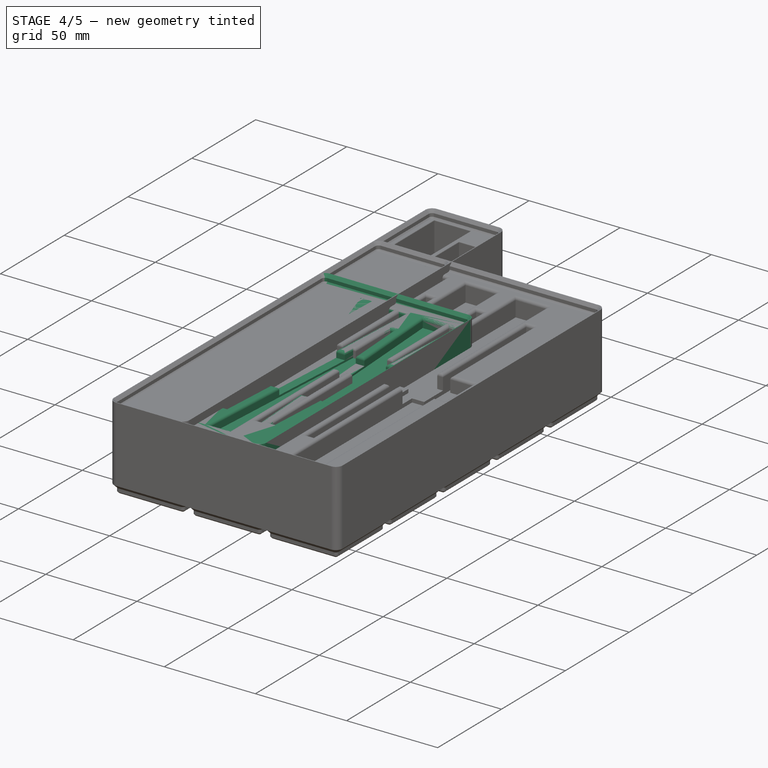
[diagram: stage 4 of 5 — iso view after this stage's code; geometry added in this stage tinted green]
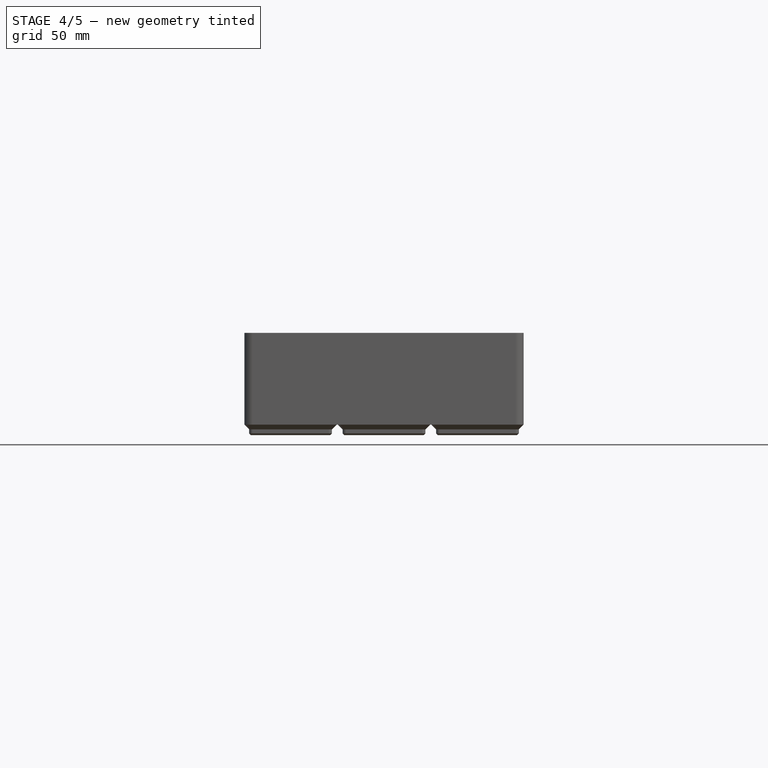
[diagram: stage 4 of 5 — front view after this stage's code; geometry added in this stage tinted green]
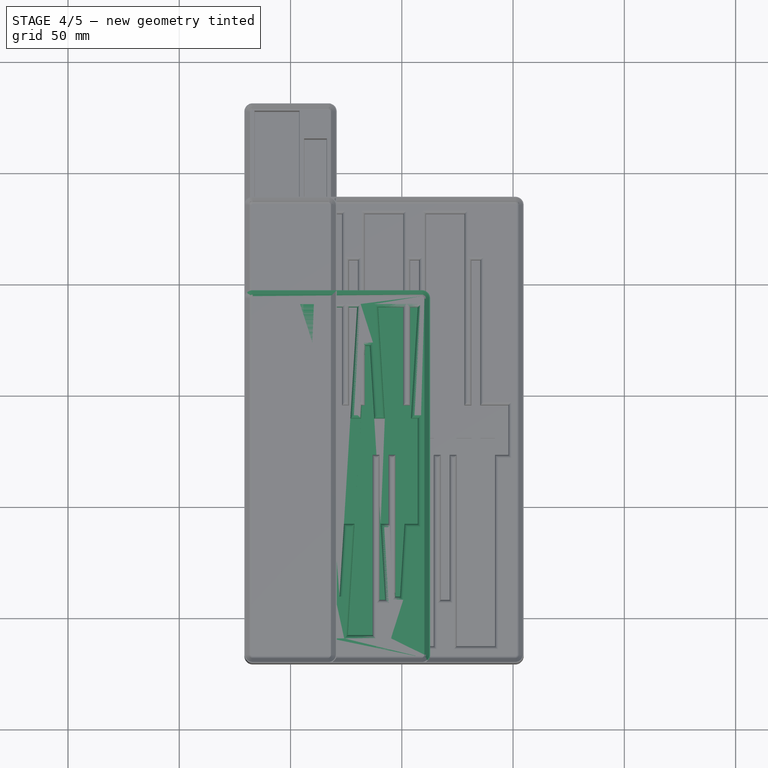
[diagram: stage 4 of 5 — top view after this stage's code; geometry added in this stage tinted green]
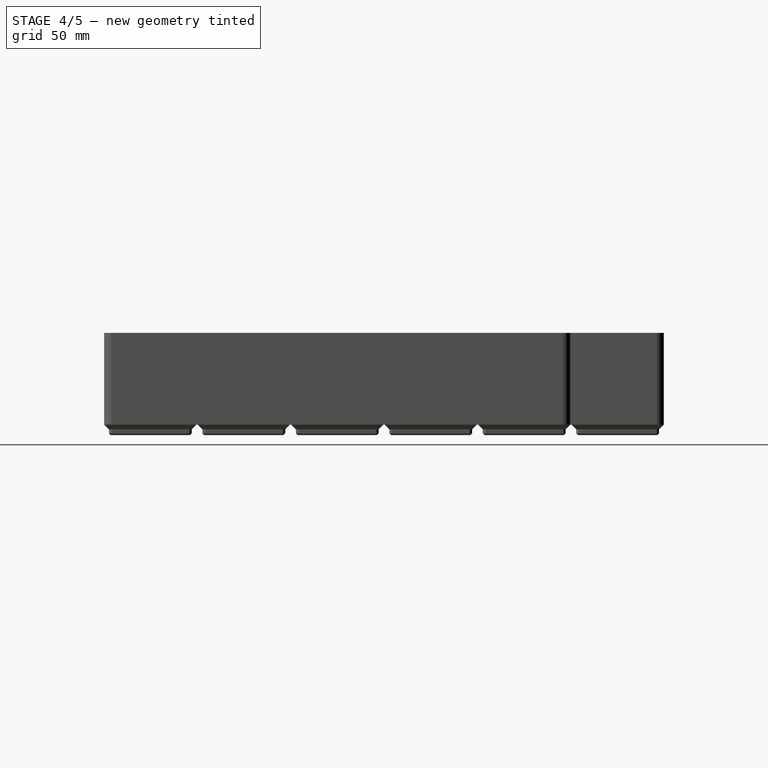
[diagram: stage 4 of 5 — right view after this stage's code; geometry added in this stage tinted green]
FEATURE [PartDesign::Body] Body  label="RJ45Crimp1"
  AllowCompound = false
  Group = -> [Sketch,Pad,Sketch001,Pad001,Sketch002,Pocket,Fillet]
  Origin = -> Origin
  Placement = pos=(9,96,7.5) rot=(0,1,0;4.71239rad)
  Tip = -> Fillet
FEATURE [Part::FeaturePython] BinBlank  # WARN: FeaturePython — macro-defined, semantics opaque (R4)
  BaseProfileBottomChamfer = 0.8
  BaseProfileHeight = 4.75
  BaseProfileTopChamfer = 2.15
  BaseProfileVerticalSection = 1.8
  BinBottomRadius = 0.8
  BinOuterRadius = 3.75
  BinUnit = 41.5
  BinVerticalRadius = 1.6
  CustomHeight = 42
  GridSize = 42
  HeightUnitValue = 7
  HeightUnits = 6
  MagnetHoleDepth = 2.4
  MagnetHoleDiameter = 6.5
  MagnetHoleDistanceFromEdge = 8
  MagnetHoles = true
  NonStandardHeight = false
  ScrewHoleDepth = 6
  ScrewHoleDiameter = 3
  ScrewHoles = true
  SequentialBridgingLayerHeight = 0.2
  StackingLip = true
  StackingLipBottomChamfer = 0.7
  StackingLipTopChamfer = 1.5
  StackingLipTopLedge = 0.4
  StackingLipVerticalSection = 1.8
  Tolerance = 0.25
  TotalHeight = 42
  WallThickness = 1
  version = 0.6.0
  xGridUnits = 1
  xTotalWidth = 41.5
  yGridUnits = 5
  yTotalWidth = 209.5
FEATURE [PartDesign::FeatureBase] BaseFeature
  BaseFeature = -> BinBlank
  Suppressed = false
FEATURE [PartDesign::Body] Body001  label="RJ45Crimp2"
  AllowCompound = false
  BaseFeature = -> BinBlank
  Group = -> [BaseFeature,Sketch003,Pocket001,Sketch004,Pocket002,Fillet001]
  Origin = -> Origin001
  Tip = -> Fillet001
FEATURE [PartDesign::FeaturePython] BinBlank001  # WARN: FeaturePython — macro-defined, semantics opaque (R4)
  BaseProfileBottomChamfer = 0.8
  BaseProfileHeight = 4.75
  BaseProfileTopChamfer = 2.15
  BaseProfileVerticalSection = 1.8
  BinBottomRadius = 0.8
  BinOuterRadius = 3.75
  BinUnit = 41.5
  BinVerticalRadius = 1.6
  CustomHeight = 42
  GridSize = 42
  HeightUnitValue = 7
  HeightUnits = 6
  MagnetHoleDepth = 2.4
  MagnetHoleDiameter = 6.5
  MagnetHoleDistanceFromEdge = 8
  MagnetHoles = true
  NonStandardHeight = false
  ScrewHoleDepth = 6
  ScrewHoleDiameter = 3
  ScrewHoles = true
  SequentialBridgingLayerHeight = 0.2
  StackingLip = true
  StackingLipBottomChamfer = 0.7
  StackingLipTopChamfer = 1.5
  StackingLipTopLedge = 0.4
  StackingLipVerticalSection = 1.8
  Suppressed = false
  Tolerance = 0.25
  TotalHeight = 42
  WallThickness = 1
  version = 0.6.0
  xGridUnits = 2
  xTotalWidth = 83.5
  yGridUnits = 4
  yTotalWidth = 167.5
FEATURE [Sketcher::SketchObject] Sketch005
  ArcFitTolerance = 1e-06
  AttachmentSupport = -> [BinBlank001]
  ExternalGeometry = -> [BinBlank001]
  FullyConstrained = true
  MakeInternals = false
  MapMode = 5
  Placement = pos=(0,0,-7.1e-15) rot=(0,0,1;0rad)
  sketch-geometry (65):
    g0: LineSegment [constr] StartX=39.3181 StartY=139.15 StartZ=0 EndX=39.3181 EndY=9.15 EndZ=0
    g1: LineSegment [constr] StartX=39.3181 StartY=9.15 StartZ=0 EndX=57.15 EndY=9.15 EndZ=0
    g2: LineSegment [constr] StartX=57.15 StartY=9.15 StartZ=0 EndX=57.15 EndY=139.15 EndZ=0
    g3: LineSegment [constr] StartX=57.15 StartY=139.15 StartZ=0 EndX=39.3181 EndY=139.15 EndZ=0
    g4: LineSegment [constr] StartX=39.3181 StartY=139.15 StartZ=0 EndX=48.2341 EndY=9.15 EndZ=0
    g5: LineSegment [constr] StartX=48.2341 StartY=9.15 StartZ=0 EndX=57.15 EndY=139.15 EndZ=0
    g6: LineSegment StartX=57.15 StartY=139.15 StartZ=0 EndX=39.3181 EndY=139.15 EndZ=0
    g7: LineSegment [constr] StartX=40.4841 StartY=122.15 StartZ=0 EndX=55.9841 EndY=122.15 EndZ=0
    g8: LineSegment [constr] StartX=12.0841 StartY=139.15 StartZ=0 EndX=12.0841 EndY=9.15 EndZ=0
    g9: LineSegment [constr] StartX=12.0841 StartY=9.15 StartZ=0 EndX=29.9159 EndY=9.15 EndZ=0
    g10: LineSegment [constr] StartX=29.9159 StartY=9.15 StartZ=0 EndX=29.9159 EndY=139.15 EndZ=0
    g11: LineSegment [constr] StartX=29.9159 StartY=139.15 StartZ=0 EndX=12.0841 EndY=139.15 EndZ=0
    g12: LineSegment [constr] StartX=12.0841 StartY=139.15 StartZ=0 EndX=21 EndY=9.15 EndZ=0
    g13: LineSegment [constr] StartX=21 StartY=9.15 StartZ=0 EndX=29.9159 EndY=139.15 EndZ=0
    g14: LineSegment StartX=29.9159 StartY=139.15 StartZ=0 EndX=12.0841 EndY=139.15 EndZ=0
    g15: LineSegment [constr] StartX=13.25 StartY=122.15 StartZ=0 EndX=28.75 EndY=122.15 EndZ=0
    g16: LineSegment [constr] StartX=-15.15 StartY=139.15 StartZ=0 EndX=-15.15 EndY=9.15 EndZ=0
    g17: LineSegment [constr] StartX=-15.15 StartY=9.15 StartZ=0 EndX=2.68186 EndY=9.15 EndZ=0
    g18: LineSegment [constr] StartX=2.68186 StartY=9.15 StartZ=0 EndX=2.68186 EndY=139.15 EndZ=0
    g19: LineSegment [constr] StartX=2.68186 StartY=139.15 StartZ=0 EndX=-15.15 EndY=139.15 EndZ=0
    g20: LineSegment [constr] StartX=-15.15 StartY=139.15 StartZ=0 EndX=-6.23407 EndY=9.15 EndZ=0
    g21: LineSegment [constr] StartX=-6.23407 StartY=9.15 StartZ=0 EndX=2.68186 EndY=139.15 EndZ=0
    g22: LineSegment StartX=2.68186 StartY=139.15 StartZ=0 EndX=-15.15 EndY=139.15 EndZ=0
    g23: LineSegment [constr] StartX=-13.9841 StartY=122.15 StartZ=0 EndX=1.51593 EndY=122.15 EndZ=0
    g24: LineSegment [constr] StartX=16.2989 StartY=-8.15 StartZ=0 EndX=16.2989 EndY=121.85 EndZ=0
    g25: LineSegment [constr] StartX=16.2989 StartY=121.85 StartZ=0 EndX=-1.53296 EndY=121.85 EndZ=0
    g26: LineSegment [constr] StartX=-1.53296 StartY=121.85 StartZ=0 EndX=-1.53296 EndY=-8.15 EndZ=0
    g27: LineSegment [constr] StartX=-1.53296 StartY=-8.15 StartZ=0 EndX=16.2989 EndY=-8.15 EndZ=0
    g28: LineSegment [constr] StartX=16.2989 StartY=-8.15 StartZ=0 EndX=7.38296 EndY=121.85 EndZ=0
    g29: LineSegment [constr] StartX=7.38296 StartY=121.85 StartZ=0 EndX=-1.53296 EndY=-8.15 EndZ=0
    g30: LineSegment StartX=-1.53296 StartY=-8.15 StartZ=0 EndX=16.2989 EndY=-8.15 EndZ=0
    g31: LineSegment [constr] StartX=15.133 StartY=8.85 StartZ=0 EndX=-0.367035 EndY=8.85 EndZ=0
    g32: LineSegment [constr] StartX=43.533 StartY=-8.15 StartZ=0 EndX=43.533 EndY=121.85 EndZ=0
    g33: LineSegment [constr] StartX=43.533 StartY=121.85 StartZ=0 EndX=25.7011 EndY=121.85 EndZ=0
    g34: LineSegment [constr] StartX=25.7011 StartY=121.85 StartZ=0 EndX=25.7011 EndY=-8.15 EndZ=0
    g35: LineSegment [constr] StartX=25.7011 StartY=-8.15 StartZ=0 EndX=43.533 EndY=-8.15 EndZ=0
    g36: LineSegment [constr] StartX=43.533 StartY=-8.15 StartZ=0 EndX=34.617 EndY=121.85 EndZ=0
    g37: LineSegment [constr] StartX=34.617 StartY=121.85 StartZ=0 EndX=25.7011 EndY=-8.15 EndZ=0
    g38: LineSegment StartX=25.7011 StartY=-8.15 StartZ=0 EndX=43.533 EndY=-8.15 EndZ=0
    g39: LineSegment [constr] StartX=42.367 StartY=8.85 StartZ=0 EndX=26.867 EndY=8.85 EndZ=0
    g40: LineSegment [constr] StartX=2.68186 StartY=139.15 StartZ=0 EndX=12.0841 EndY=139.15 EndZ=0
    g41: LineSegment [constr] StartX=29.9159 StartY=139.15 StartZ=0 EndX=39.3181 EndY=139.15 EndZ=0
    g42: LineSegment [constr] StartX=16.2989 StartY=-8.15 StartZ=0 EndX=25.7011 EndY=-8.15 EndZ=0
    g43: GeomPoint [constr] X=21 Y=-8.15 Z=0
    g44: LineSegment [constr] StartX=6.50796 StartY=109.092 StartZ=0 EndX=8.25796 EndY=109.092 EndZ=0
    g45: LineSegment [constr] StartX=-7.23407 StartY=9.15 StartZ=0 EndX=-5.23407 EndY=9.15 EndZ=0
    g46: LineSegment [constr] StartX=6.38296 StartY=121.85 StartZ=0 EndX=8.38296 EndY=121.85 EndZ=0
    g47: LineSegment [constr] StartX=33.617 StartY=121.85 StartZ=0 EndX=35.617 EndY=121.85 EndZ=0
    g48: LineSegment [constr] StartX=20 StartY=9.15 StartZ=0 EndX=22 EndY=9.15 EndZ=0
    g49: LineSegment [constr] StartX=47.2341 StartY=9.15 StartZ=0 EndX=49.2341 EndY=9.15 EndZ=0
    g50: LineSegment StartX=-15.15 StartY=139.15 StartZ=0 EndX=-7.23407 EndY=9.15 EndZ=0
    g51: LineSegment StartX=-7.23407 StartY=9.15 StartZ=0 EndX=-5.23407 EndY=9.15 EndZ=0
    g52: LineSegment StartX=-5.23407 StartY=9.15 StartZ=0 EndX=2.68186 EndY=139.15 EndZ=0
    g53: LineSegment StartX=12.0841 StartY=139.15 StartZ=0 EndX=20 EndY=9.15 EndZ=0
    g54: LineSegment StartX=20 StartY=9.15 StartZ=0 EndX=22 EndY=9.15 EndZ=0
    g55: LineSegment StartX=22 StartY=9.15 StartZ=0 EndX=29.9159 EndY=139.15 EndZ=0
    g56: LineSegment StartX=39.3181 StartY=139.15 StartZ=0 EndX=47.2341 EndY=9.15 EndZ=0
    g57: LineSegment StartX=47.2341 StartY=9.15 StartZ=0 EndX=49.2341 EndY=9.15 EndZ=0
    g58: LineSegment StartX=49.2341 StartY=9.15 StartZ=0 EndX=57.15 EndY=139.15 EndZ=0
    g59: LineSegment StartX=43.533 StartY=-8.15 StartZ=0 EndX=35.617 EndY=121.85 EndZ=0
    g60: LineSegment StartX=35.617 StartY=121.85 StartZ=0 EndX=33.617 EndY=121.85 EndZ=0
    g61: LineSegment StartX=33.617 StartY=121.85 StartZ=0 EndX=25.7011 EndY=-8.15 EndZ=0
    g62: LineSegment StartX=16.2989 StartY=-8.15 StartZ=0 EndX=8.38296 EndY=121.85 EndZ=0
    g63: LineSegment StartX=8.38296 StartY=121.85 StartZ=0 EndX=6.38296 EndY=121.85 EndZ=0
    g64: LineSegment StartX=6.38296 StartY=121.85 StartZ=0 EndX=-1.53296 EndY=-8.15 EndZ=0
  constraints (171):
    c: Coincident(g0,g1)
    c: Coincident(g1,g2)
    c: Coincident(g2,g3)
    c: Coincident(g3,g0)
    c: Vertical(g0)
    c: Vertical(g2)
    c: Horizontal(g1)
    c: Horizontal(g3)
    c: Coincident(g0,g4)
    c: Symmetric(g1,g1,g4)
    c: Coincident(g4,g5)
    c: Coincident(g5,g2)
    c: Coincident(g5,g6)
    c: Coincident(g6,g4)
    c: DistanceY(g2,g2) = 130
    c: PointOnObject(g7,g4)
    c: PointOnObject(g7,g5)
    c: Horizontal(g7)
    c: DistanceX(g7,g7) = 15.5
    c: DistanceY(g4,g7) = 113
    c: Coincident(g8,g9)
    c: Coincident(g9,g10)
    c: Coincident(g10,g11)
    c: Coincident(g11,g8)
    c: Vertical(g8)
    c: Vertical(g10)
    c: Horizontal(g9)
    c: Horizontal(g11)
    c: Coincident(g8,g12)
    c: Symmetric(g9,g9,g12)
    c: Coincident(g12,g13)
    c: Coincident(g13,g10)
    c: Coincident(g13,g14)
    c: Coincident(g14,g12)
    c: DistanceY(g10,g10) = 130
    c: PointOnObject(g15,g12)
    c: PointOnObject(g15,g13)
    c: Horizontal(g15)
    c: DistanceX(g15,g15) = 15.5
    c: DistanceY(g12,g15) = 113
    c: Coincident(g16,g17)
    c: Coincident(g17,g18)
    c: Coincident(g18,g19)
    c: Coincident(g19,g16)
    c: Vertical(g16)
    c: Vertical(g18)
    c: Horizontal(g17)
    c: Horizontal(g19)
    c: Coincident(g16,g20)
    c: Symmetric(g17,g17,g20)
    c: Coincident(g20,g21)
    c: Coincident(g21,g18)
    c: Coincident(g21,g22)
    c: Coincident(g22,g20)
    c: DistanceY(g18,g18) = 130
    c: PointOnObject(g23,g20)
    c: PointOnObject(g23,g21)
    c: Horizontal(g23)
    c: DistanceX(g23,g23) = 15.5
    c: DistanceY(g20,g23) = 113
    c: Coincident(g24,g25)
    c: Coincident(g25,g26)
    c: Coincident(g26,g27)
    c: Coincident(g27,g24)
    c: Coincident(g24,g28)
    c: Symmetric(g25,g25,g28)
    c: Coincident(g28,g29)
    c: Coincident(g29,g26)
    c: Coincident(g29,g30)
    c: Coincident(g30,g28)
    c: PointOnObject(g31,g28)
    c: PointOnObject(g31,g29)
    c: Coincident(g32,g33)
    c: Coincident(g33,g34)
    c: Coincident(g34,g35)
    c: Coincident(g35,g32)
    c: Coincident(g32,g36)
    c: Symmetric(g33,g33,g36)
    c: Coincident(g36,g37)
    c: Coincident(g37,g34)
    c: Coincident(g37,g38)
    c: Coincident(g38,g36)
    c: PointOnObject(g39,g36)
    c: PointOnObject(g39,g37)
    c: Equal(g22,g38)
    c: Equal(g38,g30)
    c: Equal(g16,g32)
    c: Equal(g32,g24)
    c: Horizontal(g33)
    c: Vertical(g32)
    c: Vertical(g34)
    c: Horizontal(g38)
    c: Horizontal(g39)
    c: Horizontal(g30)
    c: Horizontal(g31)
    c: Horizontal(g25)
    c: Vertical(g26)
    c: Vertical(g24)
    c: DistanceY(g31,g25) = 113
    c: DistanceY(g39,g33) = 113
    c: Horizontal(g10,g0)
    c: Horizontal(g18,g8)
    c: Coincident(g40,g18)
    c: Coincident(g40,g8)
    c: Coincident(g41,g10)
    c: Coincident(g41,g0)
    c: Coincident(g42,g24)
    c: Coincident(g42,g34)
    c: Horizontal(g42)
    c: Equal(g42,g41)
    c: Equal(g41,g40)
    c: Symmetric(g42,g42,g43)
    c: Vertical(g43,g12)
    c: Distance(g16,g-4) = 3
    c: Distance(g2,g-5) = 3
    c: Distance(g16,g-3) = 5
    c: Distance(g26,g-6) = 10
    c: Distance(g44) = 1.75
    c: PointOnObject(g44,g29)
    c: Horizontal(g44)
    c: PointOnObject(g44,g28)
    c: PointOnObject(g45,g17)
    c: PointOnObject(g45,g17)
    c: PointOnObject(g46,g25)
    c: PointOnObject(g46,g25)
    c: PointOnObject(g47,g33)
    c: PointOnObject(g47,g33)
    c: PointOnObject(g48,g9)
    c: PointOnObject(g48,g9)
    c: PointOnObject(g49,g1)
    c: PointOnObject(g49,g1)
    c: DistanceX(g49,g49) = 2
    c: DistanceX(g49,g4) = 1
    c: DistanceX(g48,g48) = 2
    c: DistanceX(g48,g12) = 1
    c: DistanceX(g45,g45) = 2
    c: DistanceX(g45,g20) = 1
    c: DistanceX(g46,g46) = 2
    c: DistanceX(g46,g28) = 1
    c: DistanceX(g47,g47) = 2
    c: DistanceX(g47,g36) = 1
    c: Coincident(g16,g50)
    c: Coincident(g50,g45)
    c: Coincident(g50,g51)
    c: Coincident(g51,g45)
    c: Coincident(g51,g52)
    c: Coincident(g52,g18)
    c: Coincident(g8,g53)
    c: Coincident(g53,g48)
    c: Coincident(g53,g54)
    c: Coincident(g54,g48)
    c: Coincident(g54,g55)
    c: Coincident(g55,g10)
    c: Coincident(g0,g56)
    c: Coincident(g56,g49)
    c: Coincident(g56,g57)
    c: Coincident(g57,g49)
    c: Coincident(g57,g58)
    c: Coincident(g58,g2)
    c: Coincident(g32,g59)
    c: Coincident(g59,g47)
    c: Coincident(g59,g60)
    c: Coincident(g60,g47)
    c: Coincident(g60,g61)
    c: Coincident(g61,g34)
    c: Coincident(g24,g62)
    c: Coincident(g62,g46)
    c: Coincident(g62,g63)
    c: Coincident(g63,g46)
    c: Coincident(g63,g64)
    c: Coincident(g64,g26)
FEATURE [PartDesign::Pocket] Pocket003
  BaseFeature = -> BinBlank001
  Direction = (0,0,-1)
  Length = 5
  Length2 = 5
  Profile = -> Sketch005
  ReferenceAxis = -> Sketch005 [N_Axis]
  Suppressed = false
  Type = 0
FEATURE [Sketcher::SketchObject] Sketch006
  ArcFitTolerance = 1e-06
  AttachmentSupport = -> [Pocket003]
  ExternalGeometry = -> [Pocket003]
  FullyConstrained = true
  MakeInternals = false
  MapMode = 5
  Placement = pos=(0,0,-7.1e-15) rot=(0,0,1;0rad)
  sketch-geometry (25):
    g0: LineSegment [constr] StartX=-6.23407 StartY=9.15 StartZ=0 EndX=-6.23407 EndY=139.15 EndZ=0
    g1: LineSegment [constr] StartX=21 StartY=139.15 StartZ=0 EndX=21 EndY=9.15 EndZ=0
    g2: LineSegment [constr] StartX=34.617 StartY=-8.15 StartZ=0 EndX=34.617 EndY=121.85 EndZ=0
    g3: LineSegment [constr] StartX=7.38296 StartY=-8.15 StartZ=0 EndX=7.38296 EndY=121.85 EndZ=0
    g4: LineSegment [constr] StartX=48.2341 StartY=139.15 StartZ=0 EndX=48.2341 EndY=9.15 EndZ=0
    g5: LineSegment [constr] StartX=-15.15 StartY=89.15 StartZ=0 EndX=-15.15 EndY=59.15 EndZ=0
    g6: LineSegment [constr] StartX=-15.15 StartY=59.15 StartZ=0 EndX=57.15 EndY=59.15 EndZ=0
    g7: LineSegment [constr] StartX=57.15 StartY=59.15 StartZ=0 EndX=57.15 EndY=89.15 EndZ=0
    g8: LineSegment [constr] StartX=57.15 StartY=89.15 StartZ=0 EndX=-15.15 EndY=89.15 EndZ=0
    g9: LineSegment [constr] StartX=-1.53296 StartY=71.85 StartZ=0 EndX=-1.53296 EndY=41.85 EndZ=0
    g10: LineSegment [constr] StartX=-1.53296 StartY=41.85 StartZ=0 EndX=43.533 EndY=41.85 EndZ=0
    g11: LineSegment [constr] StartX=43.533 StartY=41.85 StartZ=0 EndX=43.533 EndY=71.85 EndZ=0
    g12: LineSegment [constr] StartX=43.533 StartY=71.85 StartZ=0 EndX=-1.53296 EndY=71.85 EndZ=0
    g13: GeomPoint [constr] X=-15.15 Y=74.15 Z=0
    g14: GeomPoint [constr] X=-6.23407 Y=74.15 Z=0
    g15: GeomPoint [constr] X=7.38296 Y=56.85 Z=0
    g16: GeomPoint [constr] X=-1.53296 Y=56.85 Z=0
    g17: LineSegment [constr] StartX=-1.53296 StartY=41.85 StartZ=0 EndX=-1.53296 EndY=59.15 EndZ=0
    g18: LineSegment [constr] StartX=-1.53296 StartY=59.15 StartZ=0 EndX=-15.15 EndY=59.15 EndZ=0
    g19: LineSegment [constr] StartX=43.533 StartY=41.85 StartZ=0 EndX=43.533 EndY=59.15 EndZ=0
    g20: LineSegment [constr] StartX=43.533 StartY=59.15 StartZ=0 EndX=57.15 EndY=59.15 EndZ=0
    g21: LineSegment StartX=-15.15 StartY=89.15 StartZ=0 EndX=-15.15 EndY=41.85 EndZ=0
    g22: LineSegment StartX=-15.15 StartY=41.85 StartZ=0 EndX=57.15 EndY=41.85 EndZ=0
    g23: LineSegment StartX=57.15 StartY=41.85 StartZ=0 EndX=57.15 EndY=89.15 EndZ=0
    g24: LineSegment StartX=57.15 StartY=89.15 StartZ=0 EndX=-15.15 EndY=89.15 EndZ=0
  constraints (61):
    c: Coincident(g0,g-4)
    c: Symmetric(g-13,g-13,g0)
    c: PointOnObject(g1,g-14)
    c: Coincident(g1,g-8)
    c: Vertical(g1)
    c: Symmetric(g-16,g-16,g2)
    c: Coincident(g2,g-10)
    c: Symmetric(g-17,g-17,g3)
    c: Coincident(g3,g-6)
    c: PointOnObject(g4,g-15)
    c: Coincident(g4,g-12)
    c: Vertical(g4)
    c: Coincident(g5,g6)
    c: Coincident(g6,g7)
    c: Coincident(g7,g8)
    c: Coincident(g8,g5)
    c: Vertical(g5)
    c: Vertical(g7)
    c: Horizontal(g6)
    c: Horizontal(g8)
    c: Vertical(g7,g-15)
    c: Vertical(g5,g-13)
    c: DistanceY(g5,g5) = 30
    c: Coincident(g9,g10)
    c: Coincident(g10,g11)
    c: Coincident(g11,g12)
    c: Coincident(g12,g9)
    c: Vertical(g9)
    c: Vertical(g11)
    c: Horizontal(g10)
    c: Horizontal(g12)
    c: Vertical(g-16,g10)
    c: Vertical(g-17,g9)
    c: Equal(g5,g9)
    c: Symmetric(g5,g5,g13)
    c: Symmetric(g0,g0,g14)
    c: Symmetric(g3,g3,g15)
    c: Symmetric(g9,g9,g16)
    c: Horizontal(g16,g15)
    c: Horizontal(g13,g14)
    c: Coincident(g9,g17)
    c: PointOnObject(g17,g9)
    c: Coincident(g17,g18)
    c: Coincident(g18,g5)
    c: Horizontal(g18)
    c: Coincident(g10,g19)
    c: PointOnObject(g19,g11)
    c: Coincident(g19,g20)
    c: Coincident(g20,g6)
    c: Horizontal(g20)
    c: Coincident(g21,g22)
    c: Coincident(g22,g23)
    c: Coincident(g23,g24)
    c: Coincident(g24,g21)
    c: Vertical(g21)
    c: Vertical(g23)
    c: Horizontal(g22)
    c: Horizontal(g24)
    c: Coincident(g21,g5)
    c: Vertical(g6,g22)
    c: Horizontal(g10,g22)
FEATURE [PartDesign::Pocket] Pocket004
  BaseFeature = -> Pocket003
  Direction = (0,0,-1)
  Length = 4
  Length2 = 5
  Profile = -> Sketch006
  ReferenceAxis = -> Sketch006 [N_Axis]
  Refine = true
  Suppressed = false
  Type = 0
FEATURE [PartDesign::Fillet] Fillet002
  Base = -> Pocket004 [Edge1823,Edge1822,Edge1825,Edge1824,Edge1826,Edge1830,Edge1820,Edge1818,Edge1819,Edge1821,Edge1817,Edge1815,Edge1814,Edge1813,Edge1811,Edge1812,Edge1816,Edge1808,Edge1809,Edge1810,Edge1807,Edge1805,Edge1806,Edge1804,Edge1803,Edge1802,Edge1801,Edge1800,Edge1799,Edge1797,Edge1798,Edge1794,Edge1790,Edge1831,Edge1829,Edge1827,Edge1828,Edge1789,Edge1793,Edge1791,+3 more]
  BaseFeature = -> Pocket004
  Radius = 1.5
  SupportTransform = false
  Suppressed = false
  UseAllEdges = false
FEATURE [PartDesign::Fillet] Fillet004
  Base = -> Pocket007 [Face278]
  BaseFeature = -> Pocket007
  Radius = 1.5
  SupportTransform = false
  Suppressed = false
  UseAllEdges = false
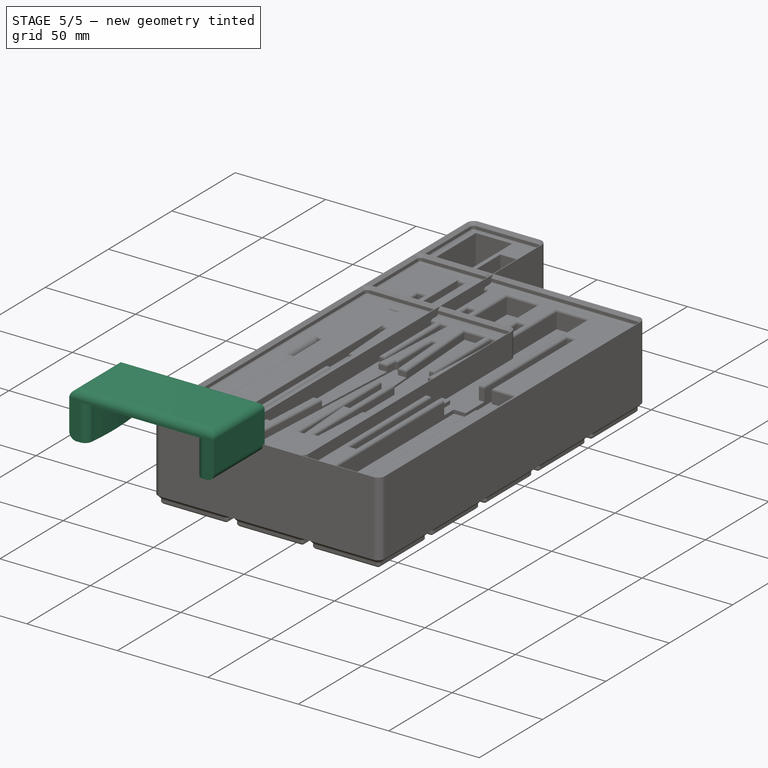
[diagram: stage 5 of 5 — iso view after this stage's code; geometry added in this stage tinted green]
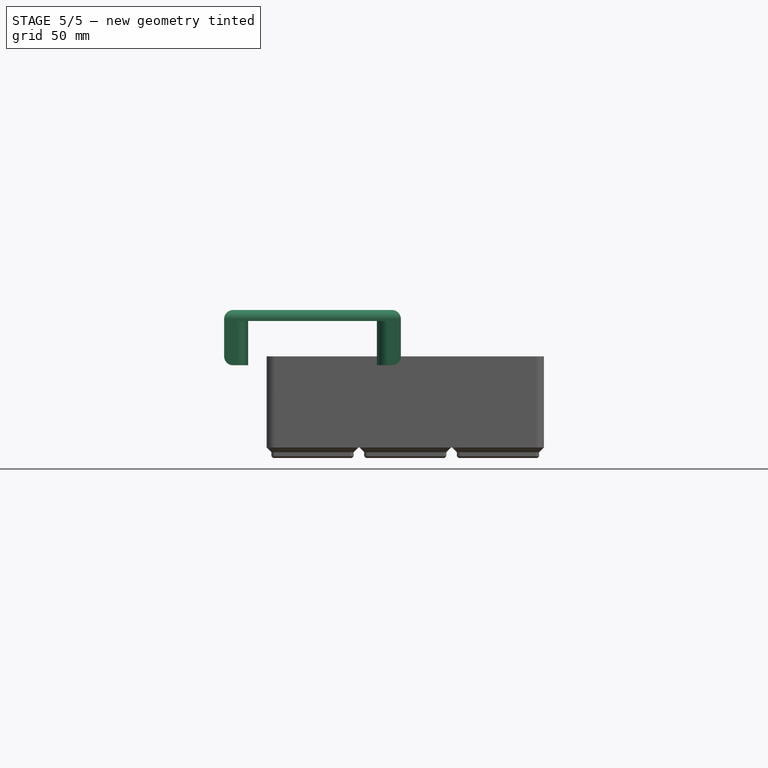
[diagram: stage 5 of 5 — front view after this stage's code; geometry added in this stage tinted green]
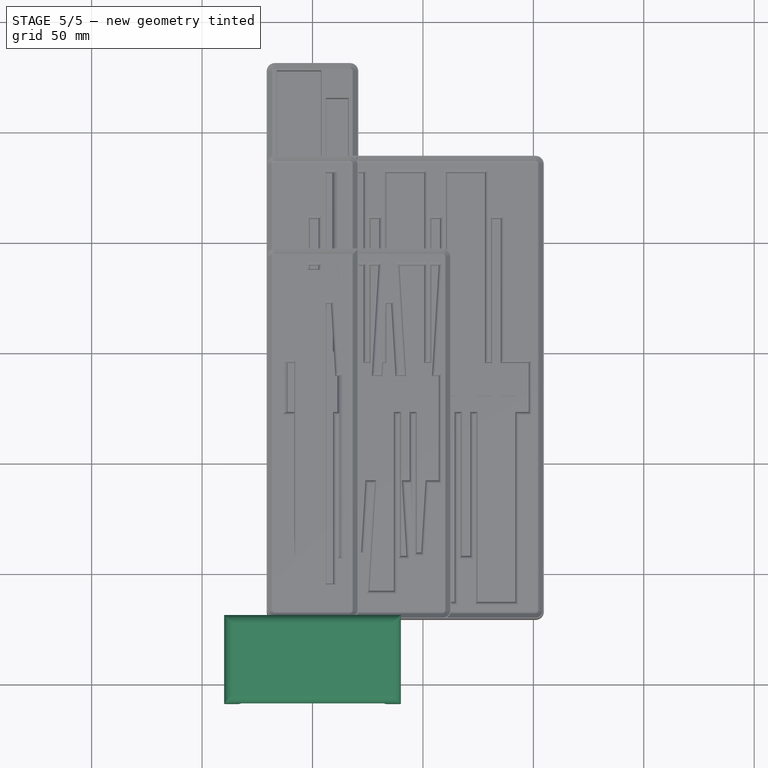
[diagram: stage 5 of 5 — top view after this stage's code; geometry added in this stage tinted green]
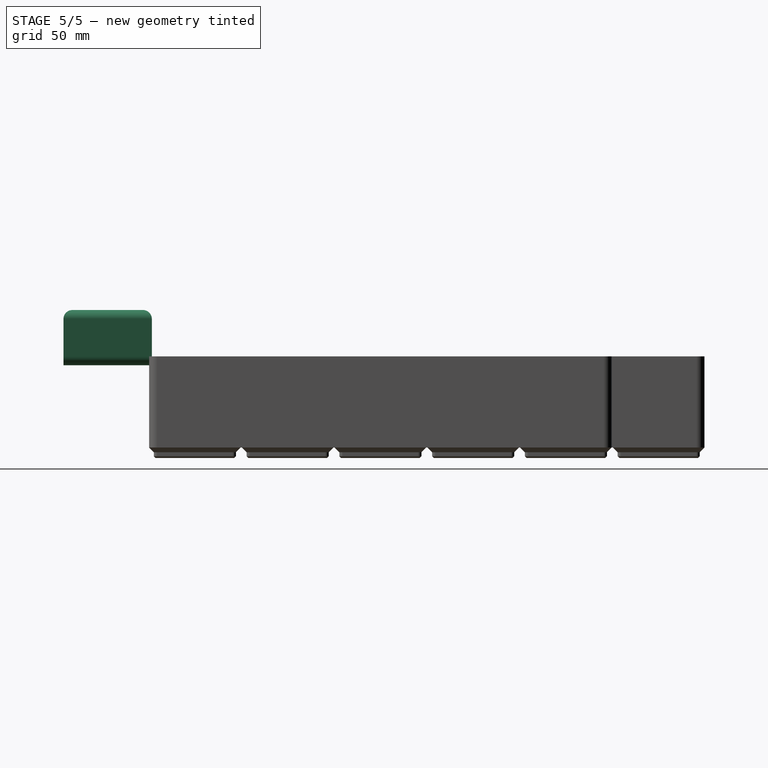
[diagram: stage 5 of 5 — right view after this stage's code; geometry added in this stage tinted green]
FEATURE [Sketcher::SketchObject] Sketch
  ArcFitTolerance = 1e-06
  AttachmentSupport = -> [XY_Plane]
  FullyConstrained = true
  MakeInternals = false
  MapMode = 5
  sketch-geometry (10):
    g0: LineSegment StartX=-30 StartY=-24.5 StartZ=0 EndX=30 EndY=-24.5 EndZ=0
    g1: ArcOfCircle CenterX=160 CenterY=-39.5 CenterZ=0 NormalX=0 NormalY=0 NormalZ=1 AngleXU=0 Radius=130.863 StartAngle=3.02672 EndAngle=3.25647
    g2: LineSegment StartX=30 StartY=-54.5 StartZ=0 EndX=-30 EndY=-54.5 EndZ=0
    g3: ArcOfCircle CenterX=-160 CenterY=-39.5 CenterZ=0 NormalX=0 NormalY=0 NormalZ=1 AngleXU=0 Radius=130.863 StartAngle=6.16831 EndAngle=6.39806
    g4: LineSegment [constr] StartX=-30 StartY=-24.5 StartZ=0 EndX=-30 EndY=-54.5 EndZ=0
    g5: LineSegment [constr] StartX=30 StartY=-54.5 StartZ=0 EndX=30 EndY=-24.5 EndZ=0
    g6: LineSegment StartX=-40 StartY=-19.5 StartZ=0 EndX=-40 EndY=-59.5 EndZ=0
    g7: LineSegment StartX=-40 StartY=-59.5 StartZ=0 EndX=40 EndY=-59.5 EndZ=0
    g8: LineSegment StartX=40 StartY=-59.5 StartZ=0 EndX=40 EndY=-19.5 EndZ=0
    g9: LineSegment StartX=40 StartY=-19.5 StartZ=0 EndX=-40 EndY=-19.5 EndZ=0
  constraints (29):
    c: Coincident(g1,g2)
    c: Coincident(g0,g3)
    c: Equal(g3,g1)
    c: Coincident(g4,g0)
    c: Coincident(g4,g2)
    c: Coincident(g5,g1)
    c: Coincident(g5,g0)
    c: DistanceY(g4,g4) = 30
    c: Equal(g5,g4)
    c: Coincident(g3,g2)
    c: Coincident(g0,g1)
    c: Horizontal(g1,g3)
    c: DistanceX(g0,g0) = 60
    c: Equal(g2,g0)
    c: DistanceX(g3,g1) = 320
    c: Symmetric(g0,g0,g-2)
    c: Coincident(g6,g7)
    c: Coincident(g7,g8)
    c: Coincident(g8,g9)
    c: Coincident(g9,g6)
    c: Vertical(g6)
    c: Vertical(g8)
    c: Horizontal(g7)
    c: Horizontal(g9)
    c: Distance(g2,g7) = 5
    c: Distance(g9,g0) = 5
    c: Distance(g5,g8) = 10
    c: Distance(g6,g4) = 10
    c: DistanceY(g6,g-1) = 19.5
FEATURE [Image::ImagePlane] img20241230_17362320
  Placement = pos=(3.75,-4.5,0) rot=(0,0,1;0rad)
  XSize = 108.289
  YSize = 208.958
FEATURE [PartDesign::Pad] Pad
  Direction = (0,0,1)
  Length = 20
  Length2 = 10
  Profile = -> Sketch
  ReferenceAxis = -> Sketch [N_Axis]
  Suppressed = false
  Type = 0
FEATURE [Sketcher::SketchObject] Sketch001
  ArcFitTolerance = 1e-06
  AttachmentSupport = -> [Pad]
  ExternalGeometry = -> [Pad]
  FullyConstrained = true
  MakeInternals = false
  MapMode = 5
  Placement = pos=(0,0,20) rot=(0,0,1;0rad)
  sketch-geometry (4):
    g0: LineSegment StartX=-40 StartY=-19.5 StartZ=0 EndX=-40 EndY=-59.5 EndZ=0
    g1: LineSegment StartX=-40 StartY=-59.5 StartZ=0 EndX=40 EndY=-59.5 EndZ=0
    g2: LineSegment StartX=40 StartY=-59.5 StartZ=0 EndX=40 EndY=-19.5 EndZ=0
    g3: LineSegment StartX=40 StartY=-19.5 StartZ=0 EndX=-40 EndY=-19.5 EndZ=0
  constraints (10):
    c: Coincident(g0,g1)
    c: Coincident(g1,g2)
    c: Coincident(g2,g3)
    c: Coincident(g3,g0)
    c: Vertical(g0)
    c: Vertical(g2)
    c: Horizontal(g1)
    c: Horizontal(g3)
    c: Coincident(g0,g-3)
    c: Coincident(g1,g-4)
FEATURE [PartDesign::Pad] Pad001
  BaseFeature = -> Pad
  Direction = (0,0,1)
  Length = 5
  Length2 = 10
  Profile = -> Sketch001
  ReferenceAxis = -> Sketch001 [N_Axis]
  Suppressed = false
  Type = 0
FEATURE [Sketcher::SketchObject] Sketch002
  ArcFitTolerance = 1e-06
  AttachmentSupport = -> [Pad001]
  ExternalGeometry = -> [Pad001]
  FullyConstrained = false
  MakeInternals = false
  MapMode = 5
  Placement = pos=(0,0,0) rot=(1,0,0;3.14159rad)
  sketch-geometry (8):
    g0: LineSegment StartX=-30 StartY=54.5 StartZ=0 EndX=30 EndY=54.5 EndZ=0
    g1: LineSegment StartX=30 StartY=54.5 StartZ=0 EndX=30 EndY=87.6903 EndZ=0
    g2: LineSegment StartX=30 StartY=87.6903 StartZ=0 EndX=-30 EndY=87.6903 EndZ=0
    g3: LineSegment StartX=-30 StartY=87.6903 StartZ=0 EndX=-30 EndY=54.5 EndZ=0
    g4: LineSegment StartX=-30 StartY=24.5 StartZ=0 EndX=-30 EndY=1.15673 EndZ=0
    g5: LineSegment StartX=-30 StartY=1.15673 StartZ=0 EndX=30 EndY=1.15673 EndZ=0
    g6: LineSegment StartX=30 StartY=1.15673 StartZ=0 EndX=30 EndY=24.5 EndZ=0
    g7: LineSegment StartX=30 StartY=24.5 StartZ=0 EndX=-30 EndY=24.5 EndZ=0
  constraints (18):
    c: Coincident(g0,g1)
    c: Coincident(g1,g2)
    c: Coincident(g2,g3)
    c: Coincident(g3,g0)
    c: Horizontal(g2)
    c: Vertical(g1)
    c: Vertical(g3)
    c: Coincident(g0,g-3)
    c: Coincident(g4,g5)
    c: Coincident(g5,g6)
    c: Coincident(g6,g7)
    c: Coincident(g7,g4)
    c: Vertical(g4)
    c: Vertical(g6)
    c: Horizontal(g5)
    c: Coincident(g4,g-3)
    c: Coincident(g6,g-4)
    c: Coincident(g0,g-4)
FEATURE [PartDesign::Pocket] Pocket
  BaseFeature = -> Pad001
  Direction = (0,0,1)
  Length = 0
  Length2 = 5
  Profile = -> Sketch002
  ReferenceAxis = -> Sketch002 [N_Axis]
  Suppressed = false
  Type = 3
  UpToFace = -> Pad001 [Face15]
FEATURE [PartDesign::Fillet] Fillet
  Base = -> Pocket [Edge7,Edge9,Edge41,Edge33,Face11,Edge43,Edge3]
  BaseFeature = -> Pocket
  Radius = 4
  SupportTransform = false
  Suppressed = false
  UseAllEdges = false
FEATURE [Sketcher::SketchObject] Sketch003
  ArcFitTolerance = 1e-06
  AttachmentSupport = -> [BaseFeature]
  ExternalGeometry = -> [BaseFeature]
  FullyConstrained = true
  MakeInternals = false
  MapMode = 5
  Placement = pos=(0,0,-7.1e-15) rot=(0,0,1;0rad)
  sketch-geometry (14):
    g0: LineSegment StartX=-12 StartY=184 StartZ=0 EndX=-12 EndY=79 EndZ=0
    g1: LineSegment StartX=-12 StartY=-16 StartZ=0 EndX=12 EndY=-16 EndZ=0
    g2: LineSegment StartX=12 StartY=-16 StartZ=0 EndX=12 EndY=34 EndZ=0
    g3: LineSegment StartX=12 StartY=184 StartZ=0 EndX=-12 EndY=184 EndZ=0
    g4: LineSegment [constr] StartX=0 StartY=184 StartZ=0 EndX=0 EndY=186.15 EndZ=0
    g5: LineSegment [constr] StartX=0 StartY=-18.15 StartZ=0 EndX=0 EndY=-16 EndZ=0
    g6: LineSegment StartX=12 StartY=79 StartZ=0 EndX=17.5 EndY=79 EndZ=0
    g7: LineSegment StartX=17.5 StartY=79 StartZ=0 EndX=17.5 EndY=34 EndZ=0
    g8: LineSegment StartX=17.5 StartY=34 StartZ=0 EndX=12 EndY=34 EndZ=0
    g9: LineSegment StartX=-12 StartY=34 StartZ=0 EndX=-17.5 EndY=34 EndZ=0
    g10: LineSegment StartX=-17.5 StartY=34 StartZ=0 EndX=-17.5 EndY=79 EndZ=0
    g11: LineSegment StartX=-17.5 StartY=79 StartZ=0 EndX=-12 EndY=79 EndZ=0
    g12: LineSegment StartX=12 StartY=79 StartZ=0 EndX=12 EndY=184 EndZ=0
    g13: LineSegment StartX=-12 StartY=34 StartZ=0 EndX=-12 EndY=-16 EndZ=0
  constraints (45):
    c: Coincident(g13,g1)
    c: Coincident(g1,g2)
    c: Coincident(g12,g3)
    c: Coincident(g3,g0)
    c: Vertical(g0)
    c: Vertical(g2)
    c: Horizontal(g3)
    c: Symmetric(g13,g1,g-2)
    c: PointOnObject(g4,g3)
    c: PointOnObject(g4,g-4)
    c: Vertical(g4)
    c: PointOnObject(g5,g-5)
    c: PointOnObject(g5,g1)
    c: Vertical(g5)
    c: Equal(g5,g4)
    c: DistanceY(g2,g12) = 200
    c: Distance(g3,g3) = 24
    c: Horizontal(g6)
    c: Coincident(g6,g7)
    c: Vertical(g7)
    c: Coincident(g7,g8)
    c: Horizontal(g8)
    c: PointOnObject(g9,g13)
    c: Horizontal(g9)
    c: Coincident(g9,g10)
    c: Vertical(g10)
    c: Coincident(g10,g11)
    c: Horizontal(g11)
    c: Horizontal(g11,g6)
    c: Horizontal(g8,g9)
    c: Equal(g9,g8)
    c: DistanceX(g8,g8) = 5.5
    c: DistanceY(g7,g7) = 45
    c: PointOnObject(g6,g12)
    c: DistanceY(g1,g8) = 50
    c: Coincident(g2,g8)
    c: PointOnObject(g12,g6)
    c: Vertical(g6,g2)
    c: Coincident(g0,g11)
    c: PointOnObject(g13,g9)
    c: Vertical(g9,g0)
    c: Equal(g3,g1)
    c: Equal(g13,g2)
    c: PointOnObject(g5,g-2)
    c: PointOnObject(g4,g-2)
FEATURE [PartDesign::Pocket] Pocket001
  BaseFeature = -> BaseFeature
  Direction = (0,0,-1)
  Length = 30
  Length2 = 5
  Profile = -> Sketch003
  ReferenceAxis = -> Sketch003 [N_Axis]
  Suppressed = false
  Type = 0
FEATURE [Sketcher::SketchObject] Sketch004
  ArcFitTolerance = 1e-06
  AttachmentSupport = -> [Pocket001]
  ExternalGeometry = -> [Pocket001]
  FullyConstrained = true
  MakeInternals = false
  MapMode = 5
  Placement = pos=(0,0,-30) rot=(0,0,1;0rad)
  sketch-geometry (4):
    g0: LineSegment StartX=-17.5 StartY=79 StartZ=0 EndX=-17.5 EndY=34 EndZ=0
    g1: LineSegment StartX=-17.5 StartY=34 StartZ=0 EndX=17.5 EndY=34 EndZ=0
    g2: LineSegment StartX=17.5 StartY=34 StartZ=0 EndX=17.5 EndY=79 EndZ=0
    g3: LineSegment StartX=17.5 StartY=79 StartZ=0 EndX=-17.5 EndY=79 EndZ=0
  constraints (10):
    c: Coincident(g0,g1)
    c: Coincident(g1,g2)
    c: Coincident(g2,g3)
    c: Coincident(g3,g0)
    c: Vertical(g0)
    c: Vertical(g2)
    c: Horizontal(g1)
    c: Horizontal(g3)
    c: Coincident(g0,g-6)
    c: Coincident(g1,g-5)
FEATURE [PartDesign::Pocket] Pocket002
  BaseFeature = -> Pocket001
  Direction = (0,0,-1)
  Length = 2
  Length2 = 5
  Profile = -> Sketch004
  ReferenceAxis = -> Sketch004 [N_Axis]
  Suppressed = false
  Type = 0
FEATURE [PartDesign::Fillet] Fillet001
  Base = -> Pocket002 [Edge550,Edge544,Edge546,Edge548,Edge533,Edge538,Edge536,Edge534,Edge324,Edge326,Edge325,Edge331,Edge332,Edge330]
  BaseFeature = -> Pocket002
  Radius = 2
  Refine = true
  SupportTransform = false
  Suppressed = false
  UseAllEdges = false
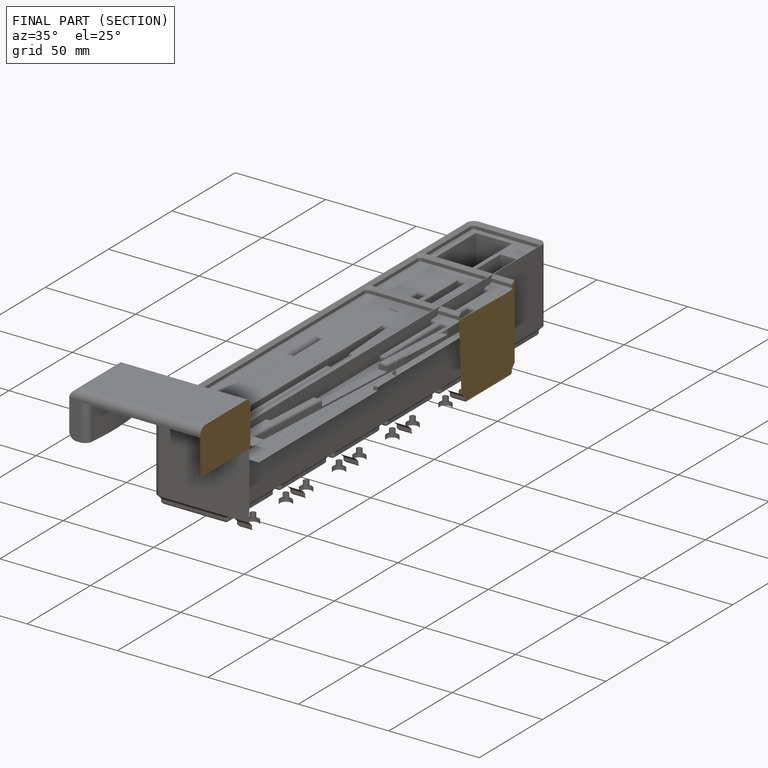
[diagram: finished part — half-section view (interior)]
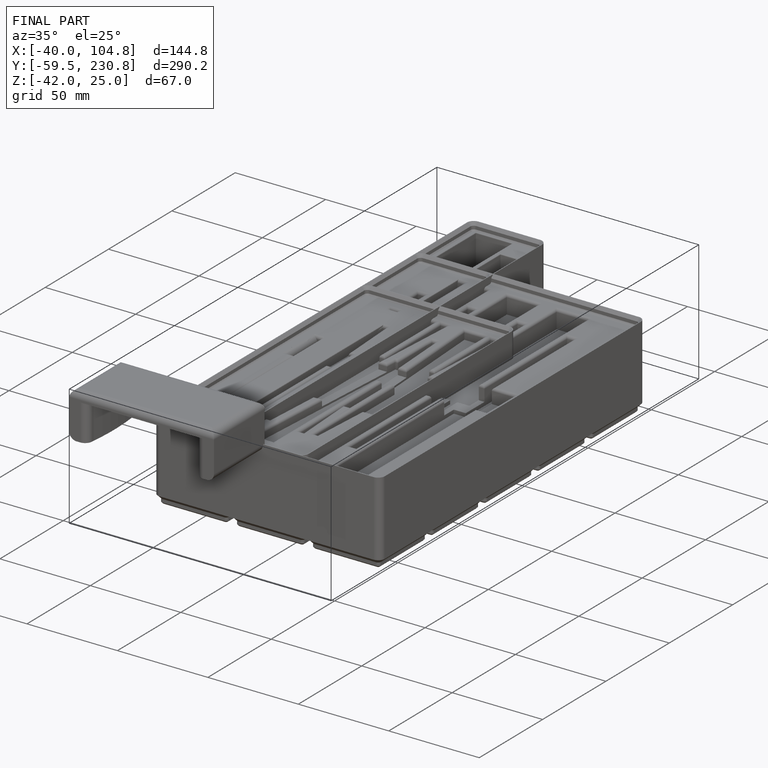
[diagram: finished part — iso view with bounding-box wireframe]
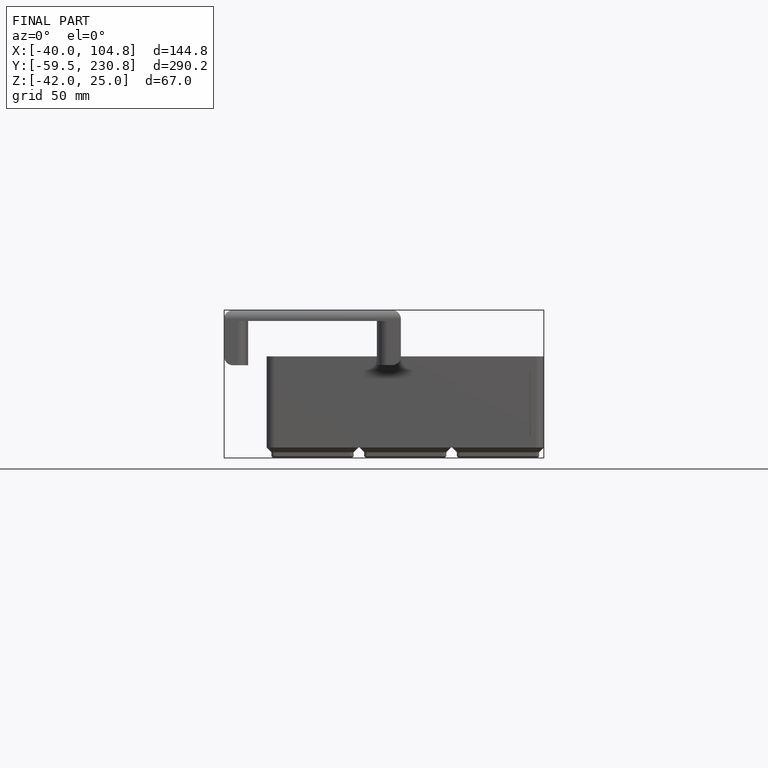
[diagram: finished part — front view with bounding-box wireframe]
